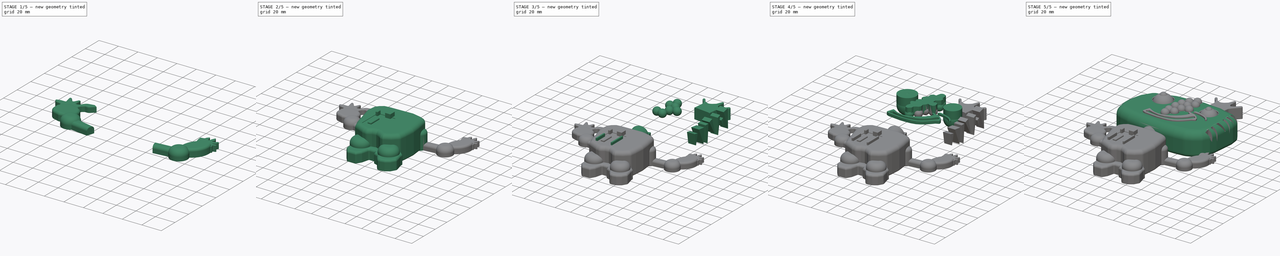
[diagram: build sequence overview — one tinted view per stage of 5, left to right]
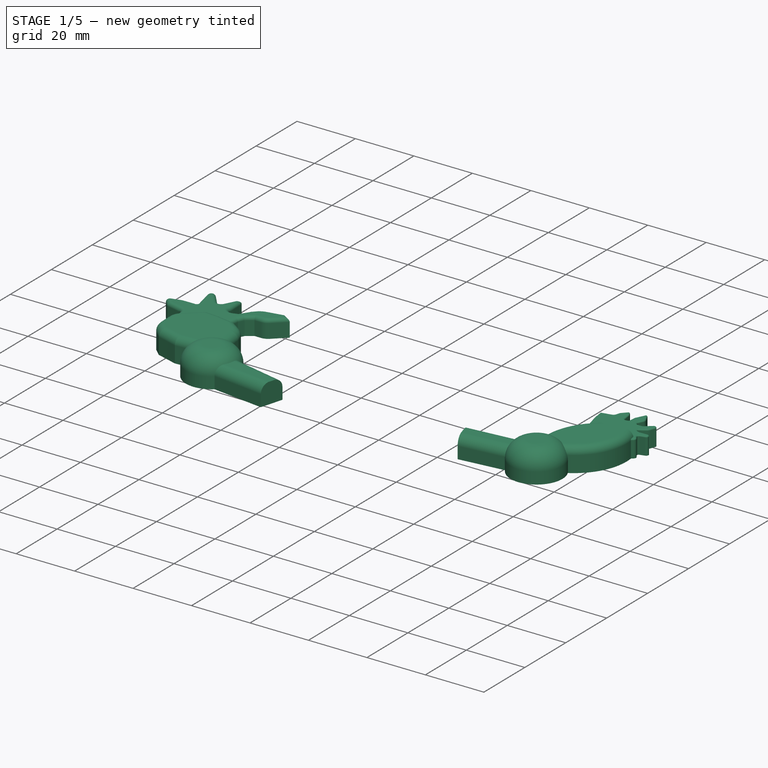
[diagram: stage 1 of 5 — iso view after this stage's code; geometry added in this stage tinted green]
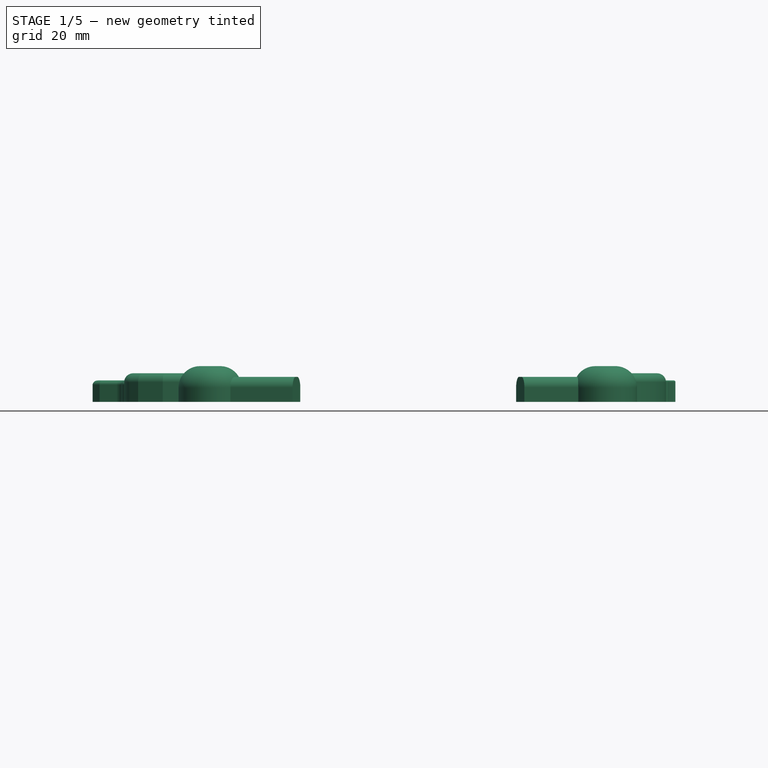
[diagram: stage 1 of 5 — front view after this stage's code; geometry added in this stage tinted green]
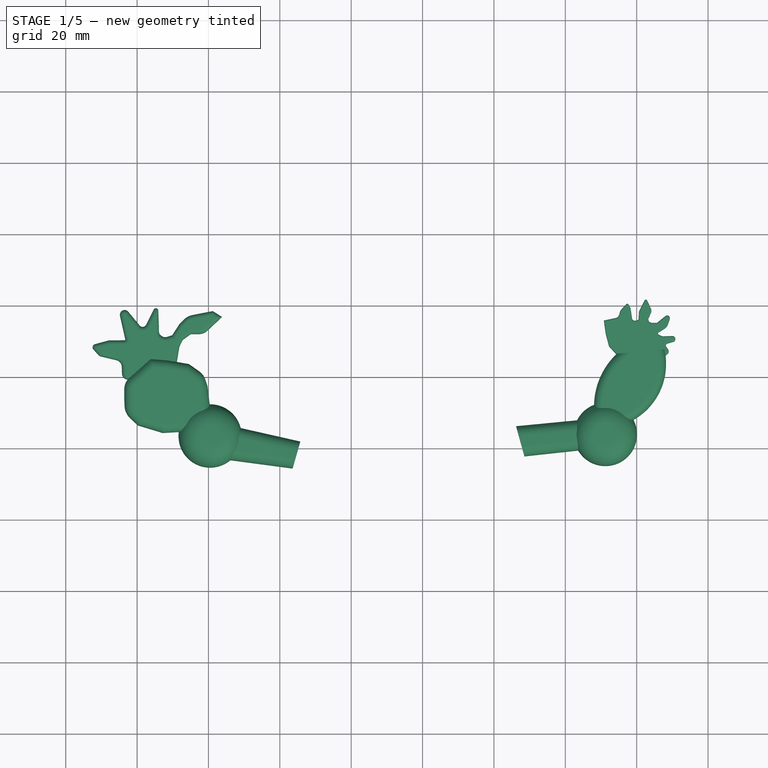
[diagram: stage 1 of 5 — top view after this stage's code; geometry added in this stage tinted green]
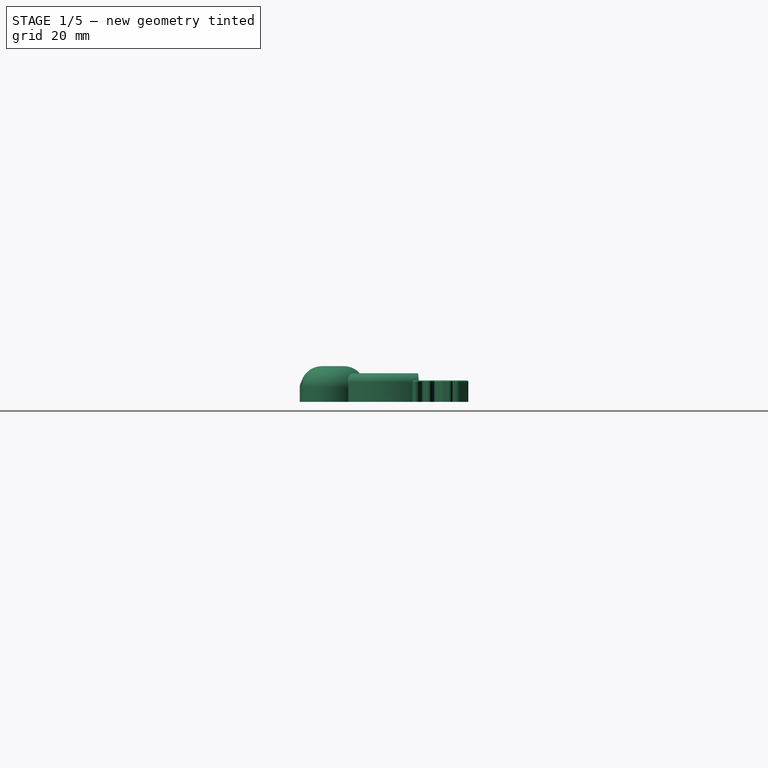
[diagram: stage 1 of 5 — right view after this stage's code; geometry added in this stage tinted green]
FCSTD DOCUMENT  (FreeCAD 0.16R6712 (Git))
Label: Robocilio
License: All rights reserved
LicenseURL: http://en.wikipedia.org/wiki/All_rights_reserved
objects: Sketcher::SketchObject×20, PartDesign::Pad×20, Part::Fillet×20, Part::Sphere×15, Part::MultiFuse×12, Part::FeaturePython×8, Part::Cut×4, App::DocumentObjectGroup×3, Image::ImagePlane×1, Part::Cylinder×1, Part::Box×1
note: 121 computed .brp shape members not serialized (recipe doc carries the construction recipe); baked Part::Feature solids carry a one-line shape summary decoded from their .brp

FEATURE [Sketcher::SketchObject] Sketch015
  sketch-geometry (2):
    g0: Circle CenterX=-59.536 CenterY=-16.493 CenterZ=0 NormalX=0 NormalY=0 NormalZ=1 Radius=8.85532
    g1: Circle CenterX=51.2286 CenterY=-16.0535 CenterZ=0 NormalX=0 NormalY=0 NormalZ=1 Radius=8.85532
  constraints (1):
    c: Equal(g1,g0)
FEATURE [PartDesign::Pad] Pad015
  Length = 10
  Length2 = 100
  Sketch = -> Sketch015
  Type = 0
FEATURE [Part::Fillet] Fillet014  label="Codos"
  Base = -> Pad015
  Edges = 2 edges r=6: [Edge3,Edge6]
FEATURE [Sketcher::SketchObject] Sketch016
  sketch-geometry (8):
    g0: LineSegment StartX=-54.849 StartY=-13.4215 StartZ=0 EndX=-34.2694 EndY=-18.0742 EndZ=0
    g1: LineSegment StartX=-56.6385 StartY=-22.9059 StartZ=0 EndX=-36.4169 EndY=-25.5902 EndZ=0
    g2: LineSegment StartX=26.2166 StartY=-13.7794 StartZ=0 EndX=48.4067 EndY=-11.6319 EndZ=0
    g3: LineSegment StartX=28.5429 StartY=-22.1901 StartZ=0 EndX=48.4067 EndY=-20.0427 EndZ=0
    g4: LineSegment StartX=-54.849 StartY=-13.4215 StartZ=0 EndX=-56.6385 EndY=-22.9059 EndZ=0
    g5: LineSegment StartX=-36.4169 StartY=-25.5902 StartZ=0 EndX=-34.2694 EndY=-18.0742 EndZ=0
    g6: LineSegment StartX=28.5429 StartY=-22.1901 StartZ=0 EndX=26.2166 EndY=-13.7794 EndZ=0
    g7: LineSegment StartX=48.4067 StartY=-20.0427 StartZ=0 EndX=48.4067 EndY=-11.6319 EndZ=0
  constraints (9):
    c: Coincident(g4,g0)
    c: Coincident(g4,g1)
    c: Coincident(g5,g1)
    c: Coincident(g5,g0)
    c: Coincident(g6,g3)
    c: Coincident(g6,g2)
    c: Coincident(g7,g3)
    c: Coincident(g7,g2)
    c: Vertical(g7)
FEATURE [PartDesign::Pad] Pad016
  Length = 7
  Length2 = 100
  Sketch = -> Sketch016
  Type = 0
FEATURE [Part::Fillet] Fillet015  label="Antebrazos"
  Base = -> Pad016
  Edges = 4 edges r=3: [Edge7,Edge12,Edge19,Edge24]
FEATURE [Sketcher::SketchObject] Sketch017
  sketch-geometry (20):
    g0: ArcOfCircle CenterX=68.3446 CenterY=-8.25946 CenterZ=0 NormalX=0 NormalY=0 NormalZ=1 Radius=20.291 StartAngle=2.32624 EndAngle=3.26261
    g1: ArcOfCircle CenterX=50.2635 CenterY=3.67212 CenterZ=0 NormalX=0 NormalY=0 NormalZ=1 Radius=17.9646 StartAngle=5.07357 EndAngle=6.51202
    g2: LineSegment StartX=48.202 StartY=-10.7091 StartZ=0 EndX=56.6117 EndY=-13.1334 EndZ=0
    g3: LineSegment StartX=54.4328 StartY=6.51165 StartZ=0 EndX=67.7598 EndY=7.74727 EndZ=0
    g4: LineSegment StartX=-66.4317 StartY=-16.0871 StartZ=0 EndX=-58.4432 EndY=-10.636 EndZ=0
    g5: LineSegment StartX=-59.3364 StartY=-10.2245 StartZ=0 EndX=-65.0959 EndY=-15.1756 EndZ=0
    g6: LineSegment StartX=-65.0959 StartY=-15.1756 StartZ=0 EndX=-72.802 EndY=-15.6297 EndZ=0
    g7: LineSegment StartX=-72.802 StartY=-15.6297 StartZ=0 EndX=-79.7245 EndY=-13.5435 EndZ=0
    g8: LineSegment StartX=-79.7245 StartY=-13.5435 StartZ=0 EndX=-81.8974 EndY=-11.5377 EndZ=0
    g9: LineSegment StartX=-83.511 StartY=-8.05563 StartZ=0 EndX=-83.6124 EndY=-5.67271 EndZ=0
    g10: LineSegment StartX=-83.6124 StartY=-5.67271 StartZ=0 EndX=-83.6124 EndY=-3.53116 EndZ=0
    g11: LineSegment StartX=-82.0913 StartY=-0.154629 StartZ=0 EndX=-76.2158 EndY=5.04291 EndZ=0
    g12: LineSegment StartX=-76.2158 StartY=5.04291 StartZ=0 EndX=-71.4744 EndY=4.66359 EndZ=0
    g13: LineSegment StartX=-71.4744 StartY=4.66359 StartZ=0 EndX=-65.5002 EndY=3.62048 EndZ=0
    g14: LineSegment StartX=-65.5002 StartY=3.62048 StartZ=0 EndX=-62.6168 EndY=1.58899 EndZ=0
    g15: LineSegment StartX=-60.8424 StartY=-0.819479 StartZ=0 EndX=-60.2846 EndY=-2.54337 EndZ=0
    g16: LineSegment StartX=-60.2846 StartY=-2.54337 StartZ=0 EndX=-59.3364 EndY=-10.2245 EndZ=0
    g17: ArcOfCircle CenterX=-79.1044 CenterY=-3.53116 CenterZ=0 NormalX=0 NormalY=0 NormalZ=1 Radius=4.50807 StartAngle=2.29505 EndAngle=3.14159
    g18: ArcOfCircle CenterX=-78.4858 CenterY=-7.84179 CenterZ=0 NormalX=0 NormalY=0 NormalZ=1 Radius=5.02976 StartAngle=3.18412 EndAngle=3.96697
    g19: ArcOfCircle CenterX=-65.3385 CenterY=-2.27411 CenterZ=0 NormalX=0 NormalY=0 NormalZ=1 Radius=4.72561 StartAngle=0.3129 EndAngle=0.957026
  constraints (21):
    c: Coincident(g2,g0)
    c: Coincident(g2,g1)
    c: Coincident(g3,g0)
    c: Coincident(g3,g1)
    c: PointOnObject(g5,g4)
    c: Coincident(g5,g6)
    c: Coincident(g6,g7)
    c: Coincident(g7,g8)
    c: Coincident(g9,g10)
    c: Vertical(g10)
    c: Coincident(g11,g12)
    c: Coincident(g12,g13)
    c: Coincident(g13,g14)
    c: Coincident(g15,g16)
    c: Coincident(g16,g5)
    c: Tangent(g10,g17) = 1.5708
    c: Tangent(g11,g17) = 1.5708
    c: Tangent(g9,g18) = 1.5708
    c: Tangent(g8,g18) = 1.5708
    c: Tangent(g14,g19) = 1.5708
    c: Tangent(g15,g19) = 1.5708
FEATURE [PartDesign::Pad] Pad017
  Length = 8
  Length2 = 100
  Sketch = -> Sketch017
  Type = 0
FEATURE [Part::Fillet] Fillet016
  Base = -> Pad017
  Edges = 14 edges r=2.5: [Edge16,Edge19,Edge25,Edge28,Edge31,Edge34,Edge37,Edge40,Edge43,Edge46,Edge49,Edge52,Edge55,Edge57]
FEATURE [Part::Fillet] Fillet017  label="Brazos"
  Base = -> Fillet016
  Edges = 2 edges r=2.5: [Edge78,Edge84]
FEATURE [Sketcher::SketchObject] Sketch018
  sketch-geometry (32):
    g0: LineSegment StartX=-78.2059 StartY=-1.08939 StartZ=0 EndX=-82.6101 EndY=-0.692968 EndZ=0
    g1: LineSegment StartX=-84.239 StartY=1.03637 StartZ=0 EndX=-84.2962 EndY=2.94403 EndZ=0
    g2: LineSegment StartX=-85.7784 StartY=4.76607 StartZ=0 EndX=-90.4851 EndY=5.89272 EndZ=0
    g3: LineSegment StartX=-87.8794 StartY=10.265 StartZ=0 EndX=-83.6255 EndY=10.2894 EndZ=0
    g4: LineSegment StartX=-83.3216 StartY=10.6719 StartZ=0 EndX=-84.7907 EndY=17.1707 EndZ=0
    g5: LineSegment StartX=-82.489 StartY=18.303 StartZ=0 EndX=-79.287 EndY=14.4391 EndZ=0
    g6: LineSegment StartX=-77.4896 StartY=14.6414 StartZ=0 EndX=-75.3248 EndY=18.9267 EndZ=0
    g7: LineSegment StartX=-74.0624 StartY=18.6508 StartZ=0 EndX=-73.9041 EndY=14.4343 EndZ=0
    g8: LineSegment StartX=-73.9041 StartY=14.4343 StartZ=0 EndX=-73.8992 EndY=12.9388 EndZ=0
    g9: LineSegment StartX=-71.6054 StartY=11.2522 StartZ=0 EndX=-70.1629 EndY=11.6974 EndZ=0
    g10: LineSegment StartX=-70.1629 StartY=11.6974 StartZ=0 EndX=-68.1277 EndY=14.8504 EndZ=0
    g11: LineSegment StartX=-68.1277 StartY=14.8504 StartZ=0 EndX=-67.0385 EndY=15.954 EndZ=0
    g12: LineSegment StartX=-64.3613 StartY=17.3897 StartZ=0 EndX=-58.8019 EndY=18.4729 EndZ=0
    g13: LineSegment StartX=-58.8019 StartY=18.4729 StartZ=0 EndX=-56.2236 EndY=16.8406 EndZ=0
    g14: LineSegment StartX=-56.2236 StartY=16.8406 StartZ=0 EndX=-60.3167 EndY=13.0126 EndZ=0
    g15: LineSegment StartX=-62.6858 StartY=12.0774 StartZ=0 EndX=-64.9346 EndY=12.0774 EndZ=0
    g16: LineSegment StartX=-64.9346 StartY=12.0774 StartZ=0 EndX=-67.2074 EndY=10.4386 EndZ=0
    g17: LineSegment StartX=-67.2074 StartY=10.4386 StartZ=0 EndX=-68.1378 EndY=8.52295 EndZ=0
    g18: LineSegment StartX=-68.1378 StartY=8.52295 StartZ=0 EndX=-69.0683 EndY=3.04964 EndZ=0
    g19: LineSegment StartX=-69.0683 StartY=3.04964 StartZ=0 EndX=-78.2059 EndY=-1.08939 EndZ=0
    g20: ArcOfCircle CenterX=-63.3776 CenterY=12.3412 CenterZ=0 NormalX=0 NormalY=0 NormalZ=1 Radius=5.14343 StartAngle=1.76323 EndAngle=2.36281
    g21: ArcOfCircle CenterX=-62.6858 CenterY=15.5458 CenterZ=0 NormalX=0 NormalY=0 NormalZ=1 Radius=3.46836 StartAngle=4.71239 EndAngle=5.46433
    g22: ArcOfCircle CenterX=-72.1278 CenterY=12.9448 CenterZ=0 NormalX=0 NormalY=0 NormalZ=1 Radius=1.77138 StartAngle=3.14493 EndAngle=5.01174
    g23: ArcOfCircle CenterX=-74.7292 CenterY=18.6258 CenterZ=0 NormalX=0 NormalY=0 NormalZ=1 Radius=0.667256 StartAngle=0.0375179 EndAngle=2.6738
    g24: ArcOfCircle CenterX=-78.4546 CenterY=15.1289 CenterZ=0 NormalX=0 NormalY=0 NormalZ=1 Radius=1.08107 StartAngle=3.8336 EndAngle=5.81539
    g25: ArcOfCircle CenterX=-83.5044 CenterY=17.4615 CenterZ=0 NormalX=0 NormalY=0 NormalZ=1 Radius=1.31877 StartAngle=0.692005 EndAngle=3.36392
    g26: ArcOfCircle CenterX=-83.6273 CenterY=10.6028 CenterZ=0 NormalX=0 NormalY=0 NormalZ=1 Radius=0.313452 StartAngle=4.71811 EndAngle=6.50552
    g27: ArcOfCircle CenterX=-82.4497 CenterY=1.08998 CenterZ=0 NormalX=0 NormalY=0 NormalZ=1 Radius=1.79016 StartAngle=3.17155 EndAngle=4.62262
    g28: LineSegment StartX=-87.8794 StartY=10.265 StartZ=0 EndX=-91.8146 EndY=9.20691 EndZ=0
    g29: LineSegment StartX=-92.2283 StartY=7.76042 StartZ=0 EndX=-90.4851 EndY=5.89272 EndZ=0
    g30: ArcOfCircle CenterX=-91.5867 CenterY=8.35931 CenterZ=0 NormalX=0 NormalY=0 NormalZ=1 Radius=0.87771 StartAngle=1.83346 EndAngle=3.89254
    g31: ArcOfCircle CenterX=-86.2283 CenterY=2.88613 CenterZ=0 NormalX=0 NormalY=0 NormalZ=1 Radius=1.93305 StartAngle=0.0299551 EndAngle=1.33585
  constraints (33):
    c: Coincident(g9,g10)
    c: Coincident(g10,g11)
    c: Coincident(g12,g13)
    c: Coincident(g13,g14)
    c: Horizontal(g15)
    c: Coincident(g15,g16)
    c: Coincident(g16,g17)
    c: Coincident(g17,g18)
    c: Coincident(g18,g19)
    c: Coincident(g19,g0)
    c: Tangent(g11,g20) = 1.5708
    c: Tangent(g12,g20) = 1.5708
    c: Tangent(g15,g21) = 1.5708
    c: Tangent(g14,g21) = 1.5708
    c: Tangent(g9,g22) = -1.5708
    c: Tangent(g8,g22) = -1.5708
    c: Tangent(g6,g23) = 1.5708
    c: Tangent(g7,g23) = 1.5708
    c: Tangent(g5,g24) = -1.5708
    c: Tangent(g6,g24) = -1.5708
    c: Tangent(g4,g25) = 1.5708
    c: Tangent(g5,g25) = 1.5708
    c: Tangent(g4,g26) = -1.5708
    c: Tangent(g3,g26) = -1.5708
    c: Tangent(g1,g27) = 1.5708
    c: Tangent(g0,g27) = 1.5708
    c: Coincident(g28,g3)
    c: Coincident(g29,g2)
    c: Tangent(g28,g30) = -1.5708
    c: Tangent(g29,g30) = -1.5708
    c: Coincident(g7,g8)
    c: Tangent(g2,g31) = -1.5708
    c: Tangent(g1,g31) = -1.5708
FEATURE [PartDesign::Pad] Pad018
  Length = 6
  Length2 = 100
  Sketch = -> Sketch018
  Type = 0
FEATURE [Part::Fillet] Fillet018  label="ManoD"
  Base = -> Pad018
  Edges = 32 edges r=1.2: [Edge4,Edge7,Edge10,Edge13,Edge16,Edge19,Edge22,Edge25,Edge28,Edge31,Edge34,Edge37,Edge40,Edge43,Edge46,Edge49,Edge52,Edge55,Edge58,Edge61,Edge64,Edge67,Edge70,Edge73,Edge76,Edge79,Edge82,Edge85,Edge88,Edge91,Edge94,Edge96]
FEATURE [Sketcher::SketchObject] Sketch020
  sketch-geometry (37):
    g0: LineSegment StartX=55.3907 StartY=5.31208 StartZ=0 EndX=52.2659 EndY=8.58384 EndZ=0
    g1: LineSegment StartX=52.2659 StartY=8.58384 StartZ=0 EndX=51.2943 EndY=12.2651 EndZ=0
    g2: LineSegment StartX=51.2943 StartY=12.2651 StartZ=0 EndX=50.8085 EndY=15.826 EndZ=0
    g3: LineSegment StartX=50.8085 StartY=15.826 StartZ=0 EndX=54.1578 EndY=16.5316 EndZ=0
    g4: LineSegment StartX=55.0542 StartY=17.3552 StartZ=0 EndX=55.4449 EndY=18.6534 EndZ=0
    g5: LineSegment StartX=55.4449 StartY=18.6534 StartZ=0 EndX=57.0714 EndY=20.3763 EndZ=0
    g6: LineSegment StartX=57.773 StartY=20.2668 StartZ=0 EndX=58.307 EndY=19.1526 EndZ=0
    g7: LineSegment StartX=58.307 StartY=19.1526 StartZ=0 EndX=58.7163 EndY=16.386 EndZ=0
    g8: LineSegment StartX=59.5935 StartY=15.7677 StartZ=0 EndX=60.2427 EndY=15.8966 EndZ=0
    g9: LineSegment StartX=60.5126 StartY=16.2059 StartZ=0 EndX=60.6378 EndY=18.288 EndZ=0
    g10: LineSegment StartX=60.6378 StartY=18.288 StartZ=0 EndX=62.1714 EndY=21.4208 EndZ=0
    g11: LineSegment StartX=62.9512 StartY=21.4118 StartZ=0 EndX=63.9915 EndY=19.1571 EndZ=0
    g12: LineSegment StartX=63.9975 StartY=17.991 StartZ=0 EndX=63.344 EndY=16.5353 EndZ=0
    g13: LineSegment StartX=64.2247 StartY=15.1746 StartZ=0 EndX=65.6891 EndY=15.1746 EndZ=0
    g14: LineSegment StartX=65.6891 StartY=15.1746 StartZ=0 EndX=68.0426 EndY=17.0672 EndZ=0
    g15: LineSegment StartX=69.2637 StartY=16.2053 StartZ=0 EndX=68.7375 EndY=14.697 EndZ=0
    g16: LineSegment StartX=67.985 StartY=13.7165 StartZ=0 EndX=66.8002 EndY=12.9105 EndZ=0
    g17: LineSegment StartX=66.8002 StartY=12.9105 StartZ=0 EndX=66.274 EndY=12.6422 EndZ=0
    g18: LineSegment StartX=66.3157 StartY=11.7588 StartZ=0 EndX=67.2813 EndY=11.3764 EndZ=0
    g19: LineSegment StartX=67.2813 StartY=11.3764 StartZ=0 EndX=69.999 EndY=11.4774 EndZ=0
    g20: LineSegment StartX=70.2386 StartY=9.86983 StartZ=0 EndX=68.6073 EndY=9.43802 EndZ=0
    g21: LineSegment StartX=68.2671 StartY=8.54521 StartZ=0 EndX=68.8149 EndY=7.71608 EndZ=0
    g22: LineSegment StartX=68.6171 StartY=6.44389 StartZ=0 EndX=66.0089 EndY=4.34188 EndZ=0
    g23: LineSegment StartX=66.0089 StartY=4.34188 StartZ=0 EndX=55.3907 EndY=5.31208 EndZ=0
    g24: ArcOfCircle CenterX=53.9118 CenterY=17.699 CenterZ=0 NormalX=0 NormalY=0 NormalZ=1 Radius=1.19303 StartAngle=4.92004 EndAngle=5.99085
    g25: ArcOfCircle CenterX=57.3846 CenterY=20.0807 CenterZ=0 NormalX=0 NormalY=0 NormalZ=1 Radius=0.430678 StartAngle=0.44688 EndAngle=2.38496
    g26: ArcOfCircle CenterX=59.4493 CenterY=16.4945 CenterZ=0 NormalX=0 NormalY=0 NormalZ=1 Radius=0.740925 StartAngle=3.28851 EndAngle=4.90832
    g27: ArcOfCircle CenterX=60.1773 CenterY=16.226 CenterZ=0 NormalX=0 NormalY=0 NormalZ=1 Radius=0.335917 StartAngle=4.90832 EndAngle=6.22311
    g28: ArcOfCircle CenterX=62.5592 CenterY=21.231 CenterZ=0 NormalX=0 NormalY=0 NormalZ=1 Radius=0.431717 StartAngle=0.432275 EndAngle=2.68635
    g29: ArcOfCircle CenterX=62.7133 CenterY=18.5674 CenterZ=0 NormalX=0 NormalY=0 NormalZ=1 Radius=1.40762 StartAngle=5.86124 EndAngle=6.71546
    g30: ArcOfCircle CenterX=64.2247 CenterY=16.1399 CenterZ=0 NormalX=0 NormalY=0 NormalZ=1 Radius=0.965372 StartAngle=2.71965 EndAngle=4.71239
    g31: ArcOfCircle CenterX=68.5298 CenterY=16.4614 CenterZ=0 NormalX=0 NormalY=0 NormalZ=1 Radius=0.777385 StartAngle=5.94748 EndAngle=8.53127
    g32: ArcOfCircle CenterX=66.8763 CenterY=15.3463 CenterZ=0 NormalX=0 NormalY=0 NormalZ=1 Radius=1.9712 StartAngle=5.30974 EndAngle=5.94748
    g33: ArcOfCircle CenterX=66.4944 CenterY=12.2099 CenterZ=0 NormalX=0 NormalY=0 NormalZ=1 Radius=0.485242 StartAngle=2.04232 EndAngle=4.33533
    g34: ArcOfCircle CenterX=70.0293 CenterY=10.6603 CenterZ=0 NormalX=0 NormalY=0 NormalZ=1 Radius=0.817657 StartAngle=4.97116 EndAngle=7.8911
    g35: ArcOfCircle CenterX=68.7578 CenterY=8.86944 CenterZ=0 NormalX=0 NormalY=0 NormalZ=1 Radius=0.588155 StartAngle=1.82957 EndAngle=3.72548
    g36: ArcOfCircle CenterX=68.0168 CenterY=7.18873 CenterZ=0 NormalX=0 NormalY=0 NormalZ=1 Radius=0.95662 StartAngle=5.39074 EndAngle=6.86707
  constraints (38):
    c: Coincident(g0,g1)
    c: Coincident(g1,g2)
    c: Coincident(g2,g3)
    c: Coincident(g4,g5)
    c: Coincident(g6,g7)
    c: Coincident(g9,g10)
    c: Horizontal(g13)
    c: Coincident(g13,g14)
    c: Coincident(g16,g17)
    c: Coincident(g18,g19)
    c: Coincident(g22,g23)
    c: Coincident(g23,g0)
    c: Tangent(g3,g24) = -1.5708
    c: Tangent(g4,g24) = -1.5708
    c: Tangent(g5,g25) = 1.5708
    c: Tangent(g6,g25) = 1.5708
    c: Tangent(g7,g26) = -1.5708
    c: Tangent(g8,g26) = -1.5708
    c: Tangent(g8,g27) = -1.5708
    c: Tangent(g9,g27) = -1.5708
    c: Tangent(g10,g28) = 1.5708
    c: Tangent(g11,g28) = 1.5708
    c: Tangent(g12,g29) = 1.5708
    c: Tangent(g11,g29) = 1.5708
    c: Tangent(g12,g30) = -1.5708
    c: Tangent(g13,g30) = -1.5708
    c: Tangent(g14,g31) = 1.5708
    c: Tangent(g15,g31) = 1.5708
    c: Tangent(g16,g32) = 1.5708
    c: Tangent(g15,g32) = 1.5708
    c: Tangent(g17,g33) = -1.5708
    c: Tangent(g18,g33) = -1.5708
    c: Tangent(g19,g34) = 1.5708
    c: Tangent(g20,g34) = 1.5708
    c: Tangent(g20,g35) = -1.5708
    c: Tangent(g21,g35) = -1.5708
    c: Tangent(g22,g36) = 1.5708
    c: Tangent(g21,g36) = 1.5708
FEATURE [PartDesign::Pad] Pad019
  Length = 6
  Length2 = 100
  Sketch = -> Sketch020
  Type = 0
FEATURE [Part::Fillet] Fillet019  label="ManoI"
  Base = -> Pad019
  Edges = 37 edges r=0.4: [Edge4,Edge7,Edge10,Edge13,Edge16,Edge19,Edge22,Edge25,Edge28,Edge31,Edge34,Edge37,Edge40,Edge43,Edge46,Edge49,Edge52,Edge55,Edge58,Edge61,Edge64,Edge67,Edge70,Edge73,Edge76,Edge79,Edge82,Edge85,Edge88,Edge91,Edge94,Edge97,Edge100,Edge103,Edge106,Edge109,Edge111]
FEATURE [Part::MultiFuse] Fusion010  label="Manos"
  Shapes = -> [Fillet018,Fillet019]
FEATURE [Part::FeaturePython] Clone004  label="Clone of Codos"  # Draft clone (typed FeaturePython)
  Objects = -> [Fillet014]
  Scale = (1,1,1)
FEATURE [Part::FeaturePython] Clone005  label="Clone of Antebrazos"  # Draft clone (typed FeaturePython)
  Objects = -> [Fillet015]
  Scale = (1,1,1)
FEATURE [Part::FeaturePython] Clone006  label="Clone of Brazos"  # Draft clone (typed FeaturePython)
  Objects = -> [Fillet017]
  Scale = (1,1,1)
FEATURE [Part::FeaturePython] Clone007  label="Clone of Manos"  # Draft clone (typed FeaturePython)
  Objects = -> [Fusion010]
  Scale = (1,1,1)
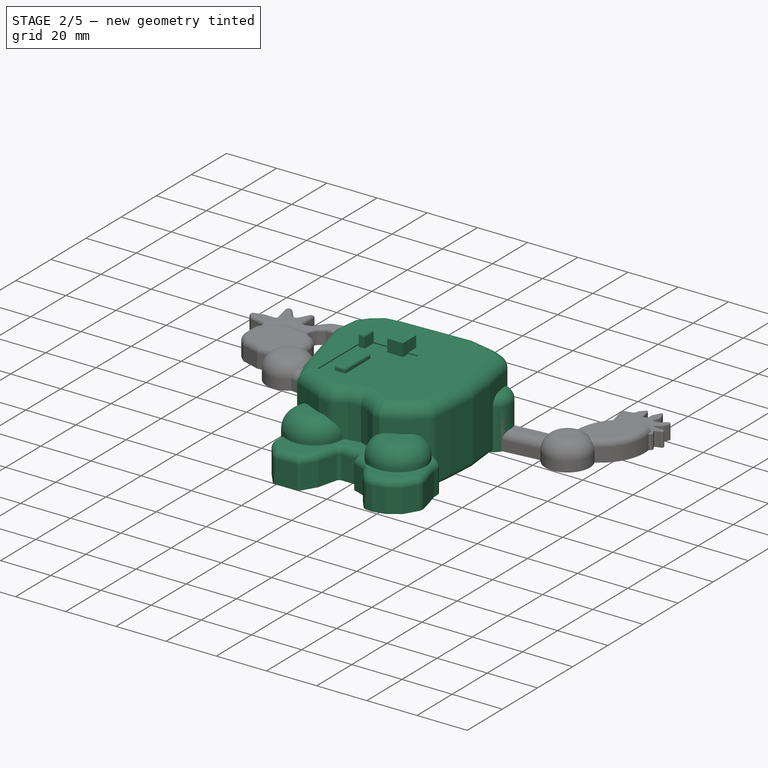
[diagram: stage 2 of 5 — iso view after this stage's code; geometry added in this stage tinted green]
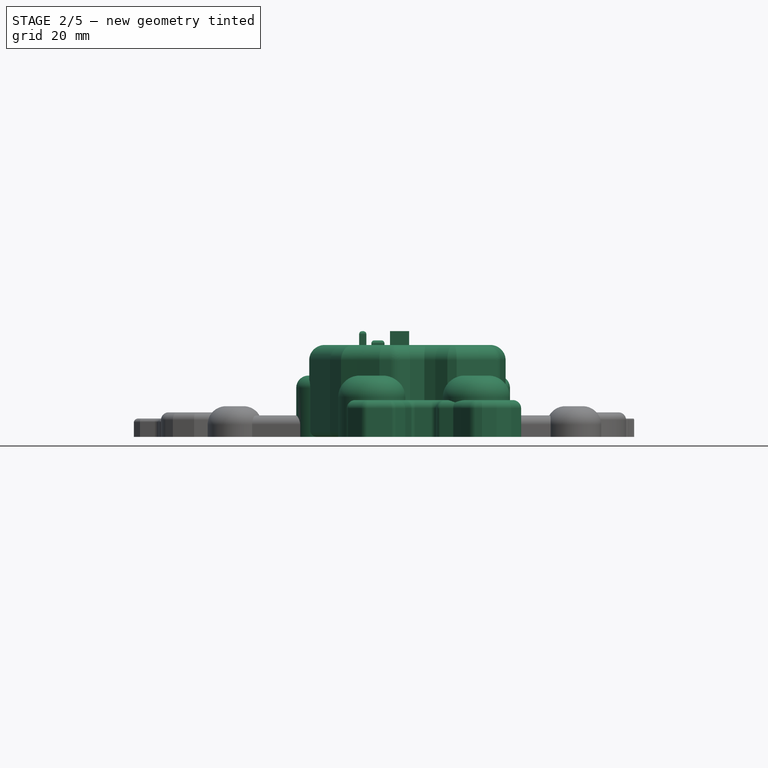
[diagram: stage 2 of 5 — front view after this stage's code; geometry added in this stage tinted green]
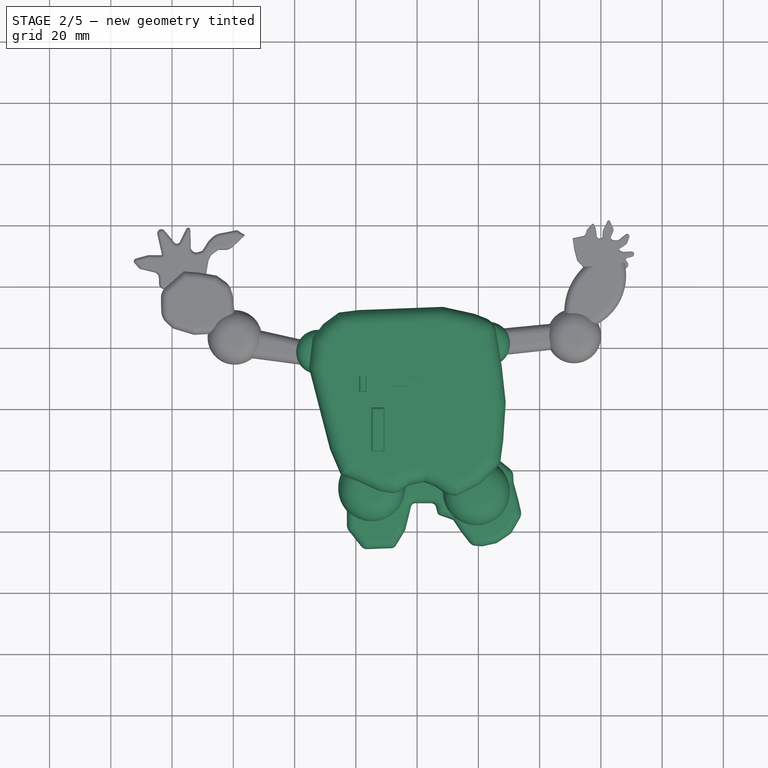
[diagram: stage 2 of 5 — top view after this stage's code; geometry added in this stage tinted green]
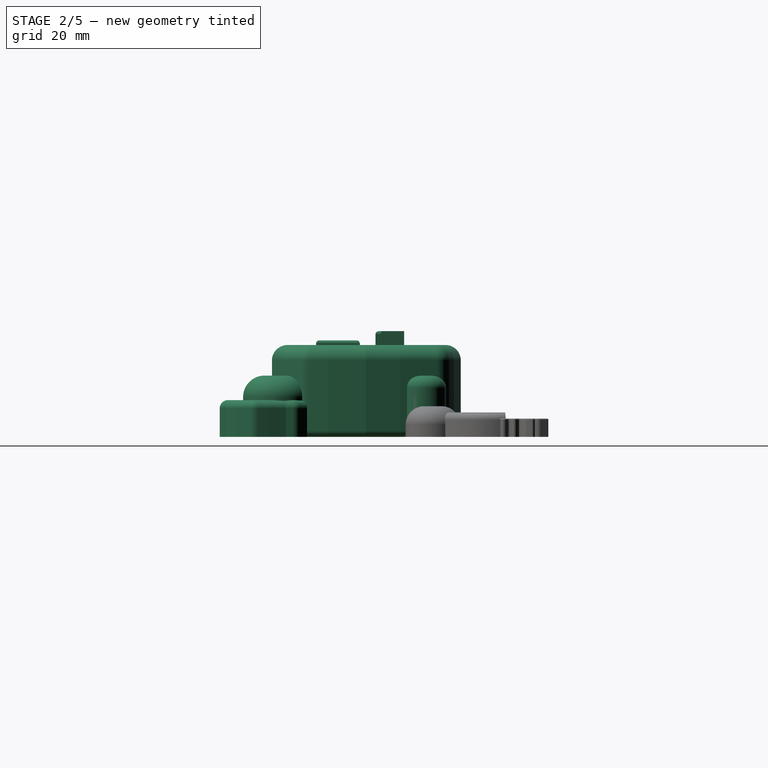
[diagram: stage 2 of 5 — right view after this stage's code; geometry added in this stage tinted green]
FEATURE [Sketcher::SketchObject] Sketch008
  sketch-geometry (26):
    g0: LineSegment StartX=-28.4269 StartY=-52.9882 StartZ=0 EndX=-35.2271 EndY=-26.6821 EndZ=0
    g1: LineSegment StartX=-35.2271 StartY=-26.6821 StartZ=0 EndX=-34.1011 EndY=-17.0644 EndZ=0
    g2: LineSegment StartX=-34.1011 StartY=-17.0644 StartZ=0 EndX=-30.6305 EndY=-12.526 EndZ=0
    g3: LineSegment StartX=-30.6305 StartY=-12.526 StartZ=0 EndX=-25.5582 EndY=-8.78845 EndZ=0
    g4: LineSegment StartX=-25.5582 StartY=-8.78845 StartZ=0 EndX=-19.151 EndY=-7.98755 EndZ=0
    g5: LineSegment StartX=-19.151 StartY=-7.98755 StartZ=0 EndX=8.3465 EndY=-6.91969 EndZ=0
    g6: LineSegment StartX=8.3465 StartY=-6.91969 StartZ=0 EndX=18.5981 EndY=-9.17246 EndZ=0
    g7: LineSegment StartX=18.5981 StartY=-9.17246 StartZ=0 EndX=22.3489 EndY=-10.6327 EndZ=0
    g8: LineSegment StartX=25.6759 StartY=-14.7241 StartZ=0 EndX=27.6619 EndY=-26.5842 EndZ=0
    g9: LineSegment StartX=27.6619 StartY=-26.5842 StartZ=0 EndX=28.9029 EndY=-37.8877 EndZ=0
    g10: LineSegment StartX=28.9029 StartY=-37.8877 StartZ=0 EndX=28.102 EndY=-50.1682 EndZ=0
    g11: LineSegment StartX=28.102 StartY=-50.1682 StartZ=0 EndX=27.2502 EndY=-56.5563 EndZ=0
    g12: LineSegment StartX=25.8792 StartY=-59.3348 StartZ=0 EndX=20.6061 EndY=-64.6201 EndZ=0
    g13: LineSegment StartX=20.6061 StartY=-64.6201 StartZ=0 EndX=12.9111 EndY=-68.5571 EndZ=0
    g14: LineSegment StartX=12.9111 StartY=-68.5571 StartZ=0 EndX=9.86895 EndY=-68.0202 EndZ=0
    g15: LineSegment StartX=9.86895 StartY=-68.0202 StartZ=0 EndX=5.932 EndY=-65.3359 EndZ=0
    g16: LineSegment StartX=5.932 StartY=-65.3359 StartZ=0 EndX=2.35295 EndY=-63.9043 EndZ=0
    g17: LineSegment StartX=2.35295 StartY=-63.9043 StartZ=0 EndX=-2.29983 EndY=-64.799 EndZ=0
    g18: LineSegment StartX=-2.29983 StartY=-64.799 StartZ=0 EndX=-5.47519 EndY=-66.8752 EndZ=0
    g19: LineSegment StartX=-8.69377 StartY=-67.551 StartZ=0 EndX=-12.3212 EndY=-66.9465 EndZ=0
    g20: LineSegment StartX=-12.3212 StartY=-66.9465 StartZ=0 EndX=-19.4793 EndY=-63.7253 EndZ=0
    g21: LineSegment StartX=-19.4793 StartY=-63.7253 StartZ=0 EndX=-24.8479 EndY=-61.3989 EndZ=0
    g22: LineSegment StartX=-24.8479 StartY=-61.3989 StartZ=0 EndX=-28.4269 EndY=-52.9882 EndZ=0
    g23: ArcOfCircle CenterX=-7.95024 CenterY=-63.0899 CenterZ=0 NormalX=0 NormalY=0 NormalZ=1 Radius=4.52271 StartAngle=4.54724 EndAngle=5.29146
    g24: ArcOfCircle CenterX=22.4532 CenterY=-55.9167 CenterZ=0 NormalX=0 NormalY=0 NormalZ=1 Radius=4.83951 StartAngle=5.49895 EndAngle=6.15063
    g25: ArcOfCircle CenterX=20.413 CenterY=-15.6054 CenterZ=0 NormalX=0 NormalY=0 NormalZ=1 Radius=5.33624 StartAngle=0.165913 EndAngle=1.19953
  constraints (26):
    c: Coincident(g0,g1)
    c: Coincident(g1,g2)
    c: Coincident(g2,g3)
    c: Coincident(g3,g4)
    c: Coincident(g4,g5)
    c: Coincident(g5,g6)
    c: Coincident(g6,g7)
    c: Coincident(g8,g9)
    c: Coincident(g9,g10)
    c: Coincident(g10,g11)
    c: Coincident(g12,g13)
    c: Coincident(g13,g14)
    c: Coincident(g14,g15)
    c: Coincident(g15,g16)
    c: Coincident(g16,g17)
    c: Coincident(g17,g18)
    c: Coincident(g19,g20)
    c: Coincident(g20,g21)
    c: Coincident(g21,g22)
    c: Coincident(g22,g0)
    c: Tangent(g19,g23) = 1.5708
    c: Tangent(g18,g23) = 1.5708
    c: Tangent(g12,g24) = 1.5708
    c: Tangent(g11,g24) = 1.5708
    c: Tangent(g7,g25) = 1.5708
    c: Tangent(g8,g25) = 1.5708
FEATURE [PartDesign::Pad] Pad008  label="Cuerpo-bruto"
  Length = 30
  Length2 = 100
  Sketch = -> Sketch008
  Type = 0
FEATURE [Part::Fillet] Fillet007
  Base = -> Pad008
  Edges = 26 edges r=5: [Edge4,Edge7,Edge10,Edge13,Edge16,Edge19,Edge22,Edge25,Edge28,Edge31,Edge34,Edge37,Edge40,Edge43,Edge46,Edge49,Edge52,Edge55,Edge58,Edge61,Edge64,Edge67,Edge70,Edge73,Edge76,Edge78]
FEATURE [Part::Fillet] Fillet008  label="Torso"
  Base = -> Fillet007
  Edges = 26 edges r=2: [Edge3,Edge6,Edge11,Edge12,Edge13,Edge14,Edge15,Edge16,Edge17,Edge18,Edge19,Edge20,Edge21,Edge22,Edge23,Edge24,Edge25,Edge26,Edge27,Edge28,Edge29,Edge30,Edge31,Edge32,Edge33,Edge34]
FEATURE [Sketcher::SketchObject] Sketch009
  Placement = pos=(0,0,29.5) rot=(0,0,1;0rad)
  sketch-geometry (8):
    g0: LineSegment StartX=-19.8378 StartY=-29.6672 StartZ=0 EndX=-8.90951 EndY=-29.6672 EndZ=0
    g1: LineSegment StartX=-8.90951 StartY=-29.6672 StartZ=0 EndX=-8.90951 EndY=-25.3881 EndZ=0
    g2: LineSegment StartX=-8.90951 StartY=-25.3881 StartZ=0 EndX=-2.58955 EndY=-25.3881 EndZ=0
    g3: LineSegment StartX=-2.58955 StartY=-25.3881 StartZ=0 EndX=-2.58955 EndY=-29.9306 EndZ=0
    g4: LineSegment StartX=-2.58955 StartY=-29.9306 StartZ=0 EndX=1.4921 EndY=-29.9306 EndZ=0
    g5: LineSegment StartX=1.4921 StartY=-29.9306 StartZ=0 EndX=1.4921 EndY=-56.8563 EndZ=0
    g6: LineSegment StartX=1.4921 StartY=-56.8563 StartZ=0 EndX=-19.8378 EndY=-56.8563 EndZ=0
    g7: LineSegment StartX=-19.8378 StartY=-56.8563 StartZ=0 EndX=-19.8378 EndY=-29.6672 EndZ=0
  constraints (16):
    c: Horizontal(g0)
    c: Coincident(g0,g1)
    c: Coincident(g1,g2)
    c: Horizontal(g2)
    c: Coincident(g2,g3)
    c: Vertical(g3)
    c: Coincident(g3,g4)
    c: Horizontal(g4)
    c: Coincident(g4,g5)
    c: Vertical(g5)
    c: Coincident(g5,g6)
    c: Horizontal(g6)
    c: Coincident(g6,g7)
    c: Coincident(g7,g0)
    c: Vertical(g7)
    c: Vertical(g1)
FEATURE [PartDesign::Pad] Pad009  label="Logo-forma"
  Length = 1
  Length2 = 100
  Placement = pos=(0,0,29.5) rot=(0,0,1;0rad)
  Sketch = -> Sketch009
  Type = 0
FEATURE [Part::Cut] Cut003  label="Cuerpo-logo-forma"
  Base = -> Fillet008
  Tool = -> Pad009
FEATURE [Sketcher::SketchObject] Sketch010
  Placement = pos=(0,0,29.5) rot=(0,0,1;0rad)
  Support = -> Cut003 [Face89]
  sketch-geometry (8):
    g0: LineSegment StartX=-8.84855 StartY=-25.3982 StartZ=0 EndX=-2.62451 EndY=-25.3982 EndZ=0
    g1: LineSegment StartX=-2.62451 StartY=-25.3982 StartZ=0 EndX=-2.62451 EndY=-32.9145 EndZ=0
    g2: LineSegment StartX=-2.62451 StartY=-32.9145 StartZ=0 EndX=-8.84855 EndY=-32.9145 EndZ=0
    g3: LineSegment StartX=-8.84855 StartY=-32.9145 StartZ=0 EndX=-8.84855 EndY=-25.3982 EndZ=0
    g4: LineSegment StartX=-18.9387 StartY=-29.6757 StartZ=0 EndX=-16.5722 EndY=-29.6757 EndZ=0
    g5: LineSegment StartX=-16.5722 StartY=-29.6757 StartZ=0 EndX=-16.5722 EndY=-34.7355 EndZ=0
    g6: LineSegment StartX=-16.5722 StartY=-34.7355 StartZ=0 EndX=-18.9387 EndY=-34.7355 EndZ=0
    g7: LineSegment StartX=-18.9387 StartY=-34.7355 StartZ=0 EndX=-18.9387 EndY=-29.6757 EndZ=0
  constraints (16):
    c: Coincident(g0,g1)
    c: Coincident(g1,g2)
    c: Coincident(g2,g3)
    c: Coincident(g3,g0)
    c: Horizontal(g0)
    c: Horizontal(g2)
    c: Vertical(g1)
    c: Vertical(g3)
    c: Coincident(g4,g5)
    c: Coincident(g5,g6)
    c: Coincident(g6,g7)
    c: Coincident(g7,g4)
    c: Horizontal(g4)
    c: Horizontal(g6)
    c: Vertical(g5)
    c: Vertical(g7)
FEATURE [PartDesign::Pad] Pad010
  Length = 5
  Length2 = 100
  Sketch = -> Sketch010
  Type = 0
FEATURE [Part::Fillet] Fillet009  label="USB-VCC"
  Base = -> Pad010
  Edges = 3 edges r=1: [Edge224,Edge226,Edge228]
FEATURE [Sketcher::SketchObject] Sketch011
  Placement = pos=(0,0,29.5) rot=(0,0,1;0rad)
  Support = -> Fillet009 [Face4]
  sketch-geometry (4):
    g0: LineSegment StartX=-14.9405 StartY=-39.869 StartZ=0 EndX=-10.6521 EndY=-39.869 EndZ=0
    g1: LineSegment StartX=-10.6521 StartY=-39.869 StartZ=0 EndX=-10.6521 EndY=-54.1304 EndZ=0
    g2: LineSegment StartX=-10.6521 StartY=-54.1304 StartZ=0 EndX=-14.9405 EndY=-54.1304 EndZ=0
    g3: LineSegment StartX=-14.9405 StartY=-54.1304 StartZ=0 EndX=-14.9405 EndY=-39.869 EndZ=0
  constraints (8):
    c: Coincident(g0,g1)
    c: Coincident(g1,g2)
    c: Coincident(g2,g3)
    c: Coincident(g3,g0)
    c: Horizontal(g0)
    c: Horizontal(g2)
    c: Vertical(g1)
    c: Vertical(g3)
FEATURE [PartDesign::Pad] Pad011
  Length = 2
  Length2 = 100
  Sketch = -> Sketch011
  Type = 0
FEATURE [Part::Fillet] Fillet010  label="Micro"
  Base = -> Pad011
  Edges = 4 edges r=1: [Edge1,Edge2,Edge3,Edge4]
FEATURE [Sketcher::SketchObject] Sketch013
  sketch-geometry (4):
    g0: Circle CenterX=-32.4107 CenterY=-21.3404 CenterZ=0 NormalX=0 NormalY=0 NormalZ=1 Radius=7.04792
    g1: Circle CenterX=23.2693 CenterY=-18.7099 CenterZ=0 NormalX=0 NormalY=0 NormalZ=1 Radius=7.04792
    g2: Circle CenterX=-14.8165 CenterY=-65.7508 CenterZ=0 NormalX=0 NormalY=0 NormalZ=1 Radius=10.9363
    g3: Circle CenterX=19.336 CenterY=-67.0263 CenterZ=0 NormalX=0 NormalY=0 NormalZ=1 Radius=10.9363
  constraints (2):
    c: Equal(g0,g1)
    c: Equal(g2,g3)
FEATURE [PartDesign::Pad] Pad013
  Length = 20
  Length2 = 100
  Sketch = -> Sketch013
  Type = 0
FEATURE [Part::Fillet] Fillet011
  Base = -> Pad013
  Edges = 2 edges r=4: [Edge9,Edge12]
FEATURE [Part::Fillet] Fillet012  label="Articulaciones"
  Base = -> Fillet011
  Edges = 2 edges r=7: [Edge13,Edge16]
FEATURE [Sketcher::SketchObject] Sketch014
  sketch-geometry (30):
    g0: LineSegment StartX=-22.9386 StartY=-72.1476 StartZ=0 EndX=-22.9386 EndY=-77.6154 EndZ=0
    g1: LineSegment StartX=-22.2404 StartY=-79.6242 StartZ=0 EndX=-18.2105 EndY=-84.7209 EndZ=0
    g2: LineSegment StartX=-16.2793 StartY=-85.6086 StartZ=0 EndX=-8.3625 EndY=-85.292 EndZ=0
    g3: LineSegment StartX=-6.93271 StartY=-84.4462 StartZ=0 EndX=-3.88179 EndY=-79.3844 EndZ=0
    g4: LineSegment StartX=-3.88179 StartY=-79.3844 StartZ=0 EndX=-1.98212 EndY=-71.7154 EndZ=0
    g5: LineSegment StartX=-0.582107 StartY=-70.6199 StartZ=0 EndX=4.54189 EndY=-70.6199 EndZ=0
    g6: LineSegment StartX=6.17726 StartY=-71.8834 StartZ=0 EndX=6.64007 EndY=-73.6575 EndZ=0
    g7: LineSegment StartX=7.45655 StartY=-74.5472 StartZ=0 EndX=11.7979 EndY=-76.0877 EndZ=0
    g8: LineSegment StartX=11.7979 StartY=-76.0877 StartZ=0 EndX=14.371 EndY=-79.9473 EndZ=0
    g9: LineSegment StartX=14.371 StartY=-79.9473 StartZ=0 EndX=17.1114 EndY=-83.4524 EndZ=0
    g10: LineSegment StartX=18.9877 StartY=-84.4802 StartZ=0 EndX=21.2057 EndY=-84.6914 EndZ=0
    g11: LineSegment StartX=21.2057 StartY=-84.6914 StartZ=0 EndX=25.9498 EndY=-83.6461 EndZ=0
    g12: LineSegment StartX=25.9498 StartY=-83.6461 StartZ=0 EndX=30.6939 EndY=-80.4297 EndZ=0
    g13: LineSegment StartX=30.6939 StartY=-80.4297 StartZ=0 EndX=33.5114 EndY=-75.581 EndZ=0
    g14: LineSegment StartX=33.8665 StartY=-73.2378 StartZ=0 EndX=33.0258 EndY=-69.5746 EndZ=0
    g15: LineSegment StartX=33.0258 StartY=-69.5746 StartZ=0 EndX=31.498 EndY=-64.0264 EndZ=0
    g16: LineSegment StartX=31.498 StartY=-64.0264 StartZ=0 EndX=31.3998 EndY=-61.8155 EndZ=0
    g17: LineSegment StartX=30.2477 StartY=-59.5146 StartZ=0 EndX=27.3168 EndY=-57.1112 EndZ=0
    g18: LineSegment StartX=27.3168 StartY=-57.1112 StartZ=0 EndX=8.58155 EndY=-65.9562 EndZ=0
    g19: LineSegment StartX=8.58155 StartY=-65.9562 StartZ=0 EndX=2.63131 EndY=-62.7398 EndZ=0
    g20: LineSegment StartX=2.63131 StartY=-62.7398 StartZ=0 EndX=-22.9386 EndY=-72.1476 EndZ=0
    g21: ArcOfCircle CenterX=-19.6999 CenterY=-77.6154 CenterZ=0 NormalX=0 NormalY=0 NormalZ=1 Radius=3.2387 StartAngle=3.14159 EndAngle=3.81064
    g22: ArcOfCircle CenterX=-16.3729 CenterY=-83.2679 CenterZ=0 NormalX=0 NormalY=0 NormalZ=1 Radius=2.34264 StartAngle=3.81064 EndAngle=4.75237
    g23: ArcOfCircle CenterX=-8.43249 CenterY=-83.5422 CenterZ=0 NormalX=0 NormalY=0 NormalZ=1 Radius=1.75114 StartAngle=4.75237 EndAngle=5.74075
    g24: ArcOfCircle CenterX=-0.582107 CenterY=-72.0622 CenterZ=0 NormalX=0 NormalY=0 NormalZ=1 Radius=1.44233 StartAngle=1.5708 EndAngle=2.89877
    g25: ArcOfCircle CenterX=4.54189 CenterY=-72.31 CenterZ=0 NormalX=0 NormalY=0 NormalZ=1 Radius=1.6901 StartAngle=0.255182 EndAngle=1.5708
    g26: ArcOfCircle CenterX=7.88775 CenterY=-73.332 CenterZ=0 NormalX=0 NormalY=0 NormalZ=1 Radius=1.28943 StartAngle=3.39677 EndAngle=4.37141
    g27: ArcOfCircle CenterX=19.2444 CenterY=-81.7847 CenterZ=0 NormalX=0 NormalY=0 NormalZ=1 Radius=2.70763 StartAngle=3.80515 EndAngle=4.61744
    g28: ArcOfCircle CenterX=30.7213 CenterY=-73.9597 CenterZ=0 NormalX=0 NormalY=0 NormalZ=1 Radius=3.22705 StartAngle=5.75679 EndAngle=6.50879
    g29: ArcOfCircle CenterX=28.246 CenterY=-61.9557 CenterZ=0 NormalX=0 NormalY=0 NormalZ=1 Radius=3.15686 StartAngle=0.044416 EndAngle=0.883979
  constraints (33):
    c: Vertical(g0)
    c: Coincident(g3,g4)
    c: Horizontal(g5)
    c: Coincident(g7,g8)
    c: Coincident(g8,g9)
    c: Coincident(g10,g11)
    c: Coincident(g11,g12)
    c: Coincident(g12,g13)
    c: Coincident(g14,g15)
    c: Coincident(g15,g16)
    c: Coincident(g17,g18)
    c: Coincident(g18,g19)
    c: Coincident(g19,g20)
    c: PointOnObject(g20,g0)
    c: Coincident(g0,g20)
    c: Tangent(g0,g21) = -1.5708
    c: Tangent(g1,g21) = -1.5708
    c: Tangent(g1,g22) = -1.5708
    c: Tangent(g2,g22) = -1.5708
    c: Tangent(g2,g23) = -1.5708
    c: Tangent(g3,g23) = -1.5708
    c: Tangent(g4,g24) = 1.5708
    c: Tangent(g5,g24) = 1.5708
    c: Tangent(g6,g25) = 1.5708
    c: Tangent(g5,g25) = 1.5708
    c: Tangent(g6,g26) = -1.5708
    c: Tangent(g7,g26) = -1.5708
    c: Tangent(g9,g27) = -1.5708
    c: Tangent(g10,g27) = -1.5708
    c: Tangent(g13,g28) = -1.5708
    c: Tangent(g14,g28) = -1.5708
    c: Tangent(g17,g29) = -1.5708
    c: Tangent(g16,g29) = -1.5708
FEATURE [PartDesign::Pad] Pad014
  Length = 12
  Length2 = 100
  Sketch = -> Sketch014
  Type = 0
FEATURE [Part::Fillet] Fillet013  label="Piernas"
  Base = -> Pad014
  Edges = 27 edges r=2.7: [Edge4,Edge7,Edge10,Edge13,Edge16,Edge19,Edge22,Edge25,Edge28,Edge31,Edge34,Edge37,Edge40,Edge43,Edge46,Edge49,Edge61,Edge64,Edge67,Edge70,Edge73,Edge76,Edge79,Edge82,Edge85,Edge88,Edge90]
FEATURE [Part::FeaturePython] Clone002  label="Clone of Articulaciones"  # Draft clone (typed FeaturePython)
  Objects = -> [Fillet012]
  Scale = (1,1,1)
FEATURE [Part::FeaturePython] Clone003  label="Clone of Piernas"  # Draft clone (typed FeaturePython)
  Objects = -> [Fillet013]
  Scale = (1,1,1)
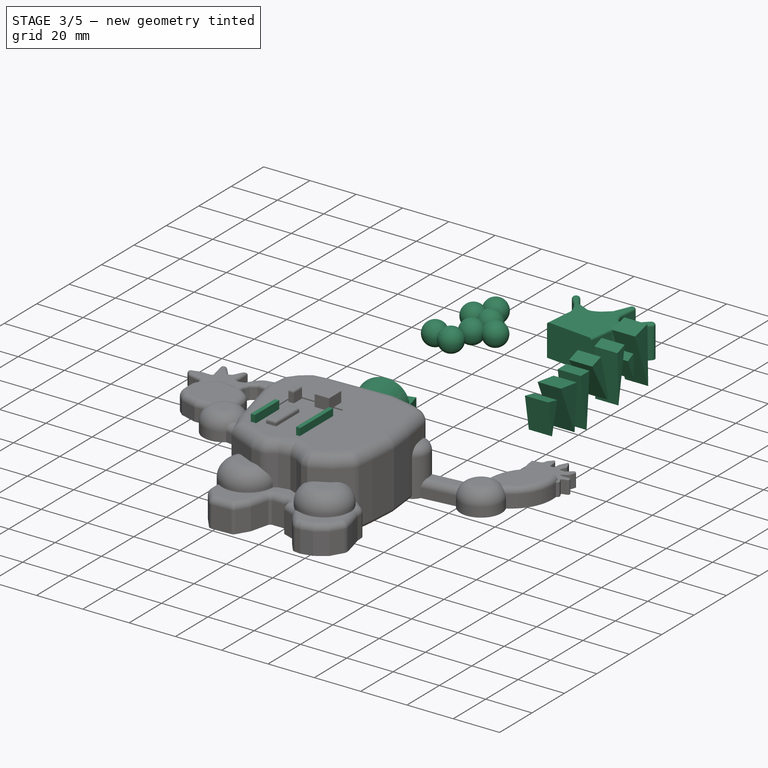
[diagram: stage 3 of 5 — iso view after this stage's code; geometry added in this stage tinted green]
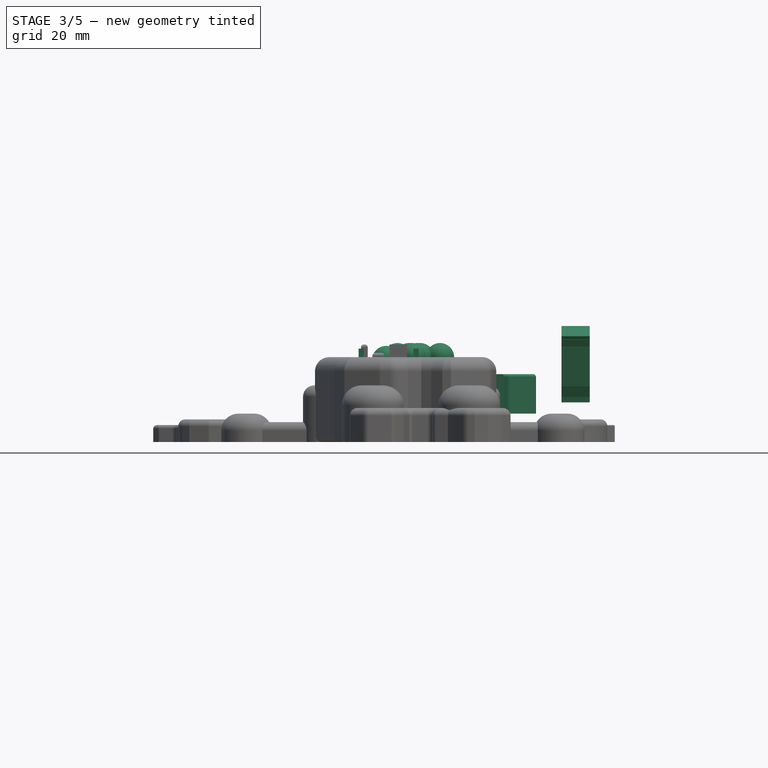
[diagram: stage 3 of 5 — front view after this stage's code; geometry added in this stage tinted green]
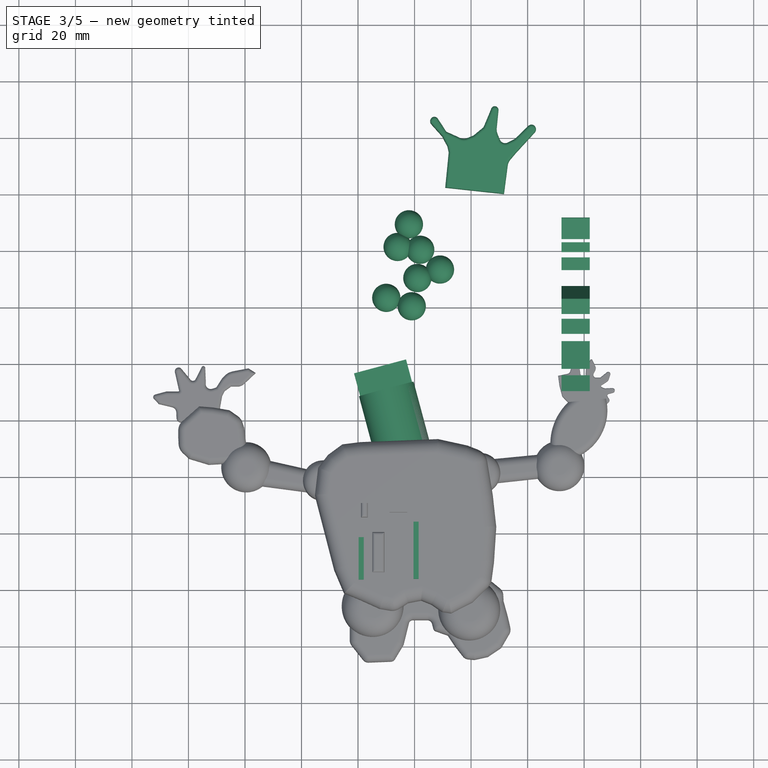
[diagram: stage 3 of 5 — top view after this stage's code; geometry added in this stage tinted green]
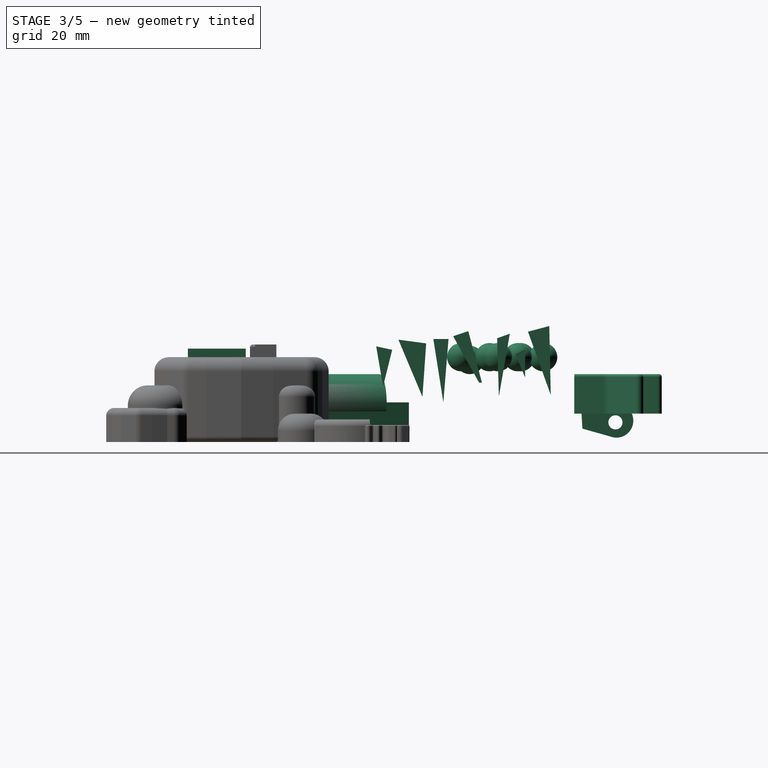
[diagram: stage 3 of 5 — right view after this stage's code; geometry added in this stage tinted green]
FEATURE [Part::Sphere] Sphere008  label="Esfera006"
  Angle1 = -90
  Angle2 = 90
  Angle3 = 360
  Placement = pos=(-6,61,30) rot=(0,0,1;0rad)
  Radius = 5
FEATURE [Part::Sphere] Sphere009  label="Esfera007"
  Angle1 = -90
  Angle2 = 90
  Angle3 = 360
  Placement = pos=(-1,40,30) rot=(0,0,1;0rad)
  Radius = 5
FEATURE [Part::Sphere] Sphere010  label="Esfera008"
  Angle1 = -90
  Angle2 = 90
  Angle3 = 360
  Placement = pos=(2,60,30) rot=(0,0,1;0rad)
  Radius = 5
FEATURE [Part::Sphere] Sphere011  label="Esfera009"
  Angle1 = -90
  Angle2 = 90
  Angle3 = 360
  Placement = pos=(-10,43,29) rot=(0,0,1;0rad)
  Radius = 5
FEATURE [Part::Sphere] Sphere012  label="Esfera010"
  Angle1 = -90
  Angle2 = 90
  Angle3 = 360
  Placement = pos=(9,53,30) rot=(0,0,1;0rad)
  Radius = 5
FEATURE [Part::Sphere] Sphere013  label="Esfera011"
  Angle1 = -90
  Angle2 = 90
  Angle3 = 360
  Placement = pos=(1,50,30) rot=(0,0,1;0rad)
  Radius = 5
FEATURE [Part::Sphere] Sphere014  label="Esfera012"
  Angle1 = -90
  Angle2 = 90
  Angle3 = 360
  Placement = pos=(-2,69,30) rot=(0,0,1;0rad)
  Radius = 5
FEATURE [Sketcher::SketchObject] Sketch005
  Placement = pos=(62,0,0) rot=(0.57735,0.57735,0.57735;2.0944rad)
  sketch-geometry (22):
    g0: LineSegment StartX=63.6177 StartY=39.0117 StartZ=0 EndX=71.6705 EndY=16.6426 EndZ=0
    g1: LineSegment StartX=71.6705 StartY=16.6426 StartZ=0 EndX=71.1471 EndY=41.0032 EndZ=0
    g2: LineSegment StartX=71.1471 StartY=41.0032 StartZ=0 EndX=63.6177 EndY=39.0117 EndZ=0
    g3: LineSegment StartX=57.1754 StartY=38.2959 StartZ=0 EndX=53.3104 EndY=16.0656 EndZ=0
    g4: LineSegment StartX=53.3104 StartY=16.0656 StartZ=0 EndX=52.7016 EndY=36.6853 EndZ=0
    g5: LineSegment StartX=52.7016 StartY=36.6853 StartZ=0 EndX=57.1754 EndY=38.2959 EndZ=0
    g6: LineSegment StartX=42.5013 StartY=39.1906 StartZ=0 EndX=47.333 EndY=20.9375 EndZ=0
    g7: LineSegment StartX=47.333 StartY=20.9375 StartZ=0 EndX=46.2945 EndY=21.0235 EndZ=0
    g8: LineSegment StartX=46.2945 StartY=21.0235 StartZ=0 EndX=37.1327 EndY=37.4011 EndZ=0
    g9: LineSegment StartX=37.1327 StartY=37.4011 StartZ=0 EndX=42.5013 EndY=39.1906 EndZ=0
    g10: LineSegment StartX=35.4937 StartY=36.4047 StartZ=0 EndX=33.6658 EndY=14.0076 EndZ=0
    g11: LineSegment StartX=33.6658 StartY=14.0076 StartZ=0 EndX=30.1251 EndY=36.4047 EndZ=0
    g12: LineSegment StartX=30.1251 StartY=36.4047 StartZ=0 EndX=35.4937 EndY=36.4047 EndZ=0
    g13: LineSegment StartX=27.5854 StartY=34.8683 StartZ=0 EndX=26.2757 EndY=15.9721 EndZ=0
    g14: LineSegment StartX=26.2757 StartY=15.9721 StartZ=0 EndX=17.7631 EndY=36.178 EndZ=0
    g15: LineSegment StartX=17.7631 StartY=36.178 StartZ=0 EndX=27.5854 EndY=34.8683 EndZ=0
    g16: LineSegment StartX=59.1586 StartY=31.0768 StartZ=0 EndX=62.596 EndY=22.827 EndZ=0
    g17: LineSegment StartX=62.596 StartY=22.827 StartZ=0 EndX=62.596 EndY=32.7464 EndZ=0
    g18: LineSegment StartX=62.596 StartY=32.7464 StartZ=0 EndX=59.1586 EndY=31.0768 EndZ=0
    g19: LineSegment StartX=15.5704 StartY=32.596 StartZ=0 EndX=12.335 EndY=19.6544 EndZ=0
    g20: LineSegment StartX=12.335 StartY=19.6544 StartZ=0 EndX=9.90844 EndY=33.8093 EndZ=0
    g21: LineSegment StartX=9.90844 StartY=33.8093 StartZ=0 EndX=15.5704 EndY=32.596 EndZ=0
  constraints (24):
    c: Coincident(g0,g1)
    c: Coincident(g1,g2)
    c: Coincident(g0,g2)
    c: Coincident(g3,g4)
    c: Coincident(g4,g5)
    c: Coincident(g5,g3)
    c: Coincident(g6,g7)
    c: Coincident(g7,g8)
    c: Coincident(g8,g9)
    c: Coincident(g9,g6)
    c: Coincident(g10,g11)
    c: Coincident(g11,g12)
    c: Coincident(g12,g10)
    c: Horizontal(g12)
    c: Coincident(g13,g14)
    c: Coincident(g14,g15)
    c: Coincident(g15,g13)
    c: Coincident(g16,g17)
    c: Vertical(g17)
    c: Coincident(g17,g18)
    c: Coincident(g18,g16)
    c: Coincident(g19,g20)
    c: Coincident(g20,g21)
    c: Coincident(g21,g19)
FEATURE [PartDesign::Pad] Pad005
  Length = 10
  Length2 = 100
  Placement = pos=(62,0,0) rot=(0.57735,0.57735,0.57735;2.0944rad)
  Reversed = true
  Sketch = -> Sketch005
  Type = 0
FEATURE [Sketcher::SketchObject] Sketch006
  Placement = pos=(0,0,10) rot=(0,0,1;0rad)
  sketch-geometry (26):
    g0: LineSegment StartX=10.8642 StartY=82.2479 StartZ=0 EndX=12.1092 EndY=94.7275 EndZ=0
    g1: LineSegment StartX=12.1092 StartY=94.7275 StartZ=0 EndX=11.6208 EndY=96.8879 EndZ=0
    g2: LineSegment StartX=11.6208 StartY=96.8879 StartZ=0 EndX=9.73129 EndY=100.427 EndZ=0
    g3: LineSegment StartX=9.73129 StartY=100.427 StartZ=0 EndX=5.90421 EndY=104.731 EndZ=0
    g4: LineSegment StartX=8.2482 StartY=106.518 StartZ=0 EndX=11.2335 EndY=101.919 EndZ=0
    g5: LineSegment StartX=11.2335 StartY=101.919 StartZ=0 EndX=16.0975 EndY=99.7144 EndZ=0
    g6: LineSegment StartX=18.6339 StartY=99.6574 StartZ=0 EndX=20.8448 EndY=100.542 EndZ=0
    g7: LineSegment StartX=20.8448 StartY=100.542 StartZ=0 EndX=24.3883 EndY=103.468 EndZ=0
    g8: LineSegment StartX=24.3883 StartY=103.468 StartZ=0 EndX=26.3525 EndY=108.084 EndZ=0
    g9: LineSegment StartX=26.3525 StartY=108.084 StartZ=0 EndX=27.1653 EndY=110.116 EndZ=0
    g10: LineSegment StartX=29.6942 StartY=109.495 StartZ=0 EndX=29.0801 EndY=103.422 EndZ=0
    g11: LineSegment StartX=29.4666 StartY=100.821 StartZ=0 EndX=30.1871 EndY=99.0962 EndZ=0
    g12: LineSegment StartX=35.9192 StartY=99.7668 StartZ=0 EndX=40.2813 EndY=103.986 EndZ=0
    g13: LineSegment StartX=42.5425 StartY=101.782 StartZ=0 EndX=35.8806 EndY=94.5293 EndZ=0
    g14: LineSegment StartX=35.8806 StartY=94.5293 StartZ=0 EndX=33.9168 EndY=92.2169 EndZ=0
    g15: LineSegment StartX=32.9722 StartY=90.084 StartZ=0 EndX=31.6557 EndY=79.9956 EndZ=0
    g16: LineSegment StartX=31.6557 StartY=79.9956 StartZ=0 EndX=10.8642 EndY=82.2479 EndZ=0
    g17: ArcOfCircle CenterX=28.3861 CenterY=109.628 CenterZ=0 NormalX=0 NormalY=0 NormalZ=1 Radius=1.31485 StartAngle=6.1824 EndAngle=9.04427
    g18: ArcOfCircle CenterX=41.3793 CenterY=102.85 CenterZ=0 NormalX=0 NormalY=0 NormalZ=1 Radius=1.57942 StartAngle=5.54021 EndAngle=8.62269
    g19: ArcOfCircle CenterX=7.0086 CenterY=105.713 CenterZ=0 NormalX=0 NormalY=0 NormalZ=1 Radius=1.47783 StartAngle=0.575721 EndAngle=3.86839
    g20: ArcOfCircle CenterX=37.0559 CenterY=89.5511 CenterZ=0 NormalX=0 NormalY=0 NormalZ=1 Radius=4.11828 StartAngle=2.43753 EndAngle=3.01183
    g21: ArcOfCircle CenterX=17.4326 CenterY=102.66 CenterZ=0 NormalX=0 NormalY=0 NormalZ=1 Radius=3.23439 StartAngle=4.28691 EndAngle=5.09292
    g22: LineSegment StartX=32.9343 StartY=98.0596 StartZ=0 EndX=34.7336 EndY=98.9363 EndZ=0
    g23: ArcOfCircle CenterX=32.05 CenterY=99.8745 CenterZ=0 NormalX=0 NormalY=0 NormalZ=1 Radius=2.01889 StartAngle=3.53734 EndAngle=5.16578
    g24: ArcOfCircle CenterX=34.4043 CenterY=102.884 CenterZ=0 NormalX=0 NormalY=0 NormalZ=1 Radius=5.35135 StartAngle=3.04081 EndAngle=3.53734
    g25: ArcOfCircle CenterX=32.7144 CenterY=103.08 CenterZ=0 NormalX=0 NormalY=0 NormalZ=1 Radius=4.60985 StartAngle=5.16578 EndAngle=5.4811
  constraints (27):
    c: Coincident(g0,g1)
    c: Coincident(g1,g2)
    c: Coincident(g2,g3)
    c: Coincident(g4,g5)
    c: Coincident(g6,g7)
    c: Coincident(g7,g8)
    c: Coincident(g8,g9)
    c: Coincident(g13,g14)
    c: Coincident(g15,g16)
    c: PointOnObject(g16,g0)
    c: Coincident(g0,g16)
    c: Tangent(g9,g17) = 1.5708
    c: Tangent(g10,g17) = 1.5708
    c: Tangent(g12,g18) = 1.5708
    c: Tangent(g13,g18) = 1.5708
    c: Tangent(g3,g19) = 1.5708
    c: Tangent(g4,g19) = 1.5708
    c: Tangent(g15,g20) = -1.5708
    c: Tangent(g14,g20) = -1.5708
    c: Tangent(g5,g21) = -1.5708
    c: Tangent(g6,g21) = -1.5708
    c: Tangent(g11,g23) = -1.5708
    c: Tangent(g22,g23) = -1.5708
    c: Tangent(g10,g24) = -1.5708
    c: Tangent(g11,g24) = -1.5708
    c: Tangent(g22,g25) = -1.5708
    c: Tangent(g12,g25) = -1.5708
FEATURE [PartDesign::Pad] Pad006  label="Corona-bruto"
  Length = 14
  Length2 = 100
  Placement = pos=(0,0,10) rot=(0,0,1;0rad)
  Sketch = -> Sketch006
  Type = 0
FEATURE [Part::Fillet] Fillet006  label="corona-sin-anilla"
  Base = -> Pad006
  Edges = 25 edges r=1: [Edge4,Edge7,Edge10,Edge13,Edge19,Edge22,Edge25,Edge28,Edge31,Edge34,Edge37,Edge40,Edge43,Edge46,Edge49,Edge52,Edge55,Edge58,Edge61,Edge64,Edge67,Edge70,Edge73,Edge76,Edge78]
FEATURE [Sketcher::SketchObject] Sketch007
  Placement = pos=(22,0,0) rot=(0.57735,0.57735,0.57735;2.0944rad)
  sketch-geometry (5):
    g0: ArcOfCircle CenterX=94.8878 CenterY=7.51939 CenterZ=0 NormalX=0 NormalY=0 NormalZ=1 Radius=6 StartAngle=4.32969 EndAngle=8.72677
    g1: Circle CenterX=94.5586 CenterY=6.92689 CenterZ=0 NormalX=0 NormalY=0 NormalZ=1 Radius=2.5
    g2: LineSegment StartX=92.6472 StartY=1.95343 StartZ=0 EndX=82.8707 EndY=4.70826 EndZ=0
    g3: LineSegment StartX=82.8707 StartY=4.70826 StartZ=0 EndX=82.4757 EndY=11.4232 EndZ=0
    g4: LineSegment StartX=82.4757 StartY=11.4232 StartZ=0 EndX=90.2911 EndY=11.3755 EndZ=0
  constraints (6):
    c: Radius(g0) = 6
    c: Radius(g1) = 2.5
    c: Coincident(g2,g3)
    c: Coincident(g3,g4)
    c: Coincident(g0,g2)
    c: Coincident(g0,g4)
FEATURE [PartDesign::Pad] Pad007  label="Anilla"
  Length = 7
  Length2 = 100
  Placement = pos=(22,0,0) rot=(0.57735,0.57735,0.57735;2.0944rad)
  Sketch = -> Sketch007
  Type = 0
FEATURE [Part::MultiFuse] Fusion006  label="Corona-anilla"
  Shapes = -> [Fillet006,Pad007]
FEATURE [Part::Cylinder] Cylinder  label="Cuello-cil"
  Angle = 360
  Height = 32
  Placement = pos=(-10,11,14) rot=(0.983106,0.129428,0.129428;1.58783rad)
  Radius = 10
FEATURE [Part::Box] Box  label="Cuello-Cubo"
  Height = 10
  Length = 19
  Placement = pos=(-10.5,-24,4) rot=(0,0,1;0.261799rad)
  Width = 42
FEATURE [Part::MultiFuse] Fusion008  label="Cuello"
  Shapes = -> [Box,Cylinder]
FEATURE [Sketcher::SketchObject] Sketch012
  Placement = pos=(0,0,29.5) rot=(0,0,1;0rad)
  Support = -> Fillet010 [Face10]
  sketch-geometry (8):
    g0: LineSegment StartX=-19.7827 StartY=-41.7274 StartZ=0 EndX=-17.9764 EndY=-41.7274 EndZ=0
    g1: LineSegment StartX=-17.9764 StartY=-41.7274 StartZ=0 EndX=-17.9764 EndY=-56.7215 EndZ=0
    g2: LineSegment StartX=-17.9764 StartY=-56.7215 StartZ=0 EndX=-19.7827 EndY=-56.7215 EndZ=0
    g3: LineSegment StartX=-19.7827 StartY=-56.7215 StartZ=0 EndX=-19.7827 EndY=-41.7274 EndZ=0
    g4: LineSegment StartX=1.4579 StartY=-36.2401 StartZ=0 EndX=-0.348395 EndY=-36.2401 EndZ=0
    g5: LineSegment StartX=-0.348395 StartY=-36.2401 StartZ=0 EndX=-0.348395 EndY=-56.522 EndZ=0
    g6: LineSegment StartX=-0.348395 StartY=-56.522 StartZ=0 EndX=1.4579 EndY=-56.522 EndZ=0
    g7: LineSegment StartX=1.4579 StartY=-56.522 StartZ=0 EndX=1.4579 EndY=-36.2401 EndZ=0
  constraints (17):
    c: Coincident(g0,g1)
    c: Coincident(g1,g2)
    c: Coincident(g2,g3)
    c: Coincident(g3,g0)
    c: Horizontal(g0)
    c: Horizontal(g2)
    c: Vertical(g1)
    c: Vertical(g3)
    c: Coincident(g4,g5)
    c: Coincident(g5,g6)
    c: Coincident(g6,g7)
    c: Coincident(g7,g4)
    c: Horizontal(g4)
    c: Horizontal(g6)
    c: Vertical(g5)
    c: Vertical(g7)
    c: Equal(g6,g2)
FEATURE [PartDesign::Pad] Pad012  label="Cuerpo-logo"
  Length = 3.5
  Length2 = 100
  Sketch = -> Sketch012
  Type = 0
FEATURE [Part::FeaturePython] Clone001  label="Clone of Cuerpo-logo"  # Draft clone (typed FeaturePython)
  Objects = -> [Pad012]
  Scale = (1,1,1)
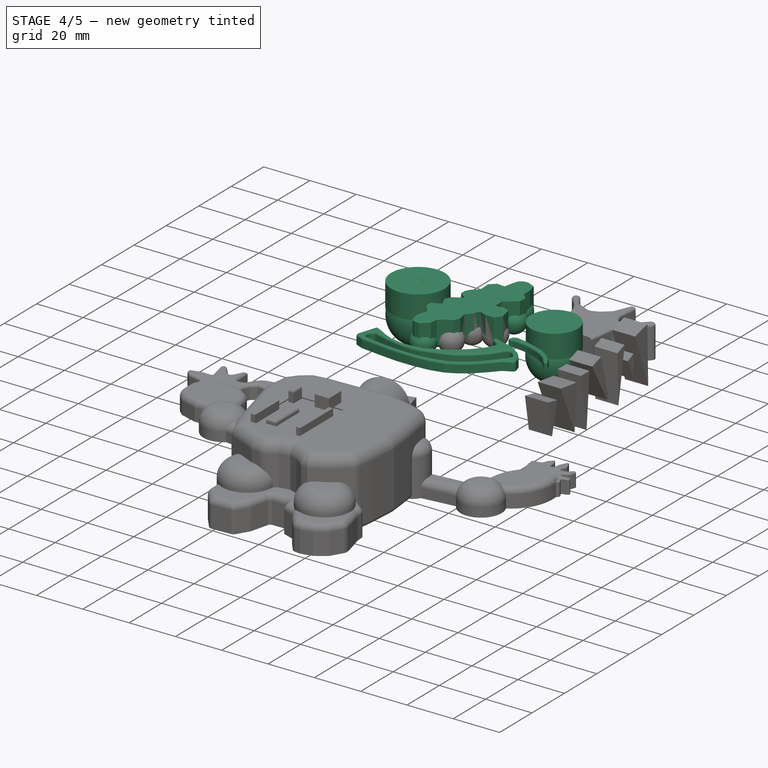
[diagram: stage 4 of 5 — iso view after this stage's code; geometry added in this stage tinted green]
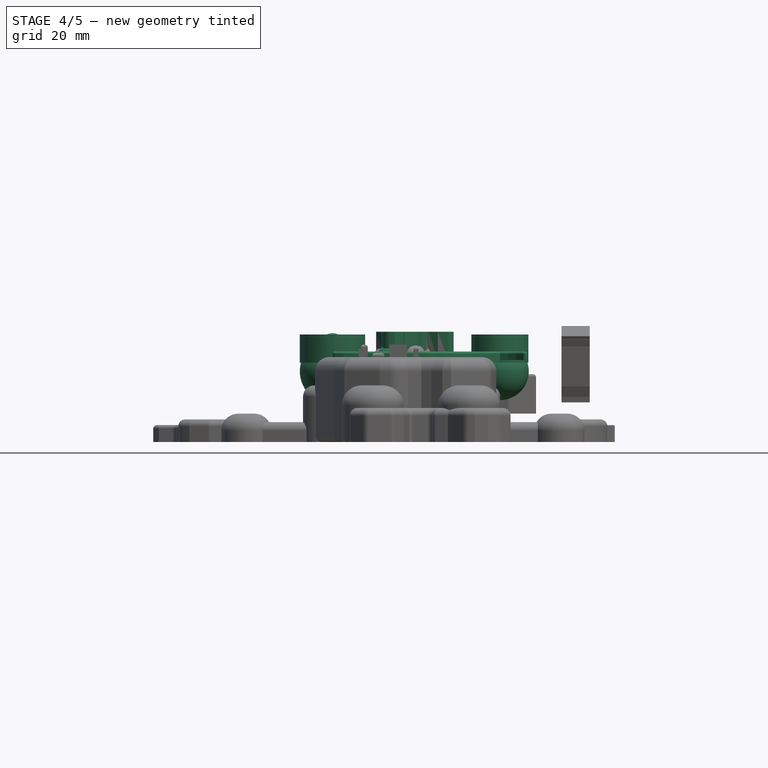
[diagram: stage 4 of 5 — front view after this stage's code; geometry added in this stage tinted green]
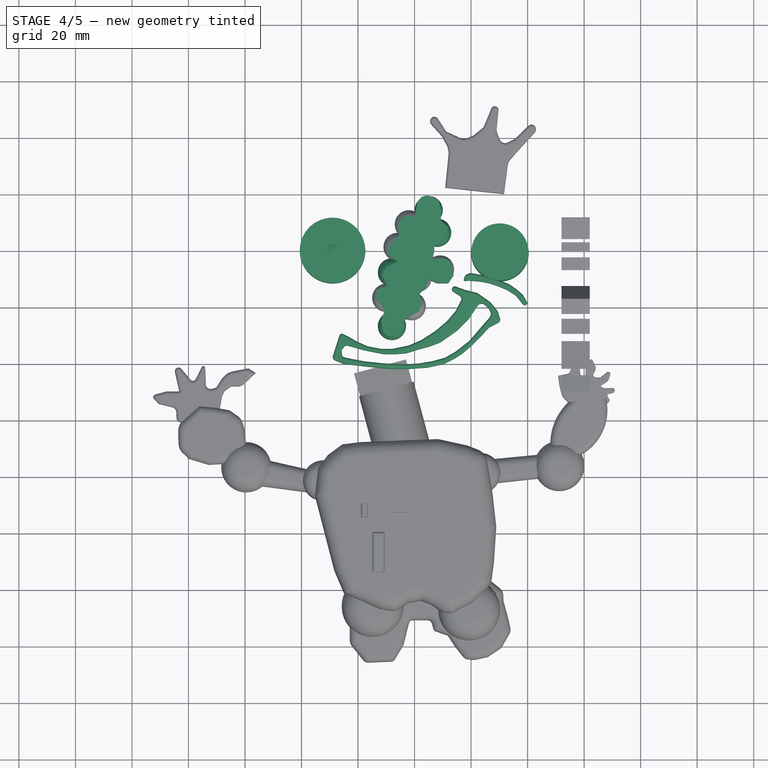
[diagram: stage 4 of 5 — top view after this stage's code; geometry added in this stage tinted green]
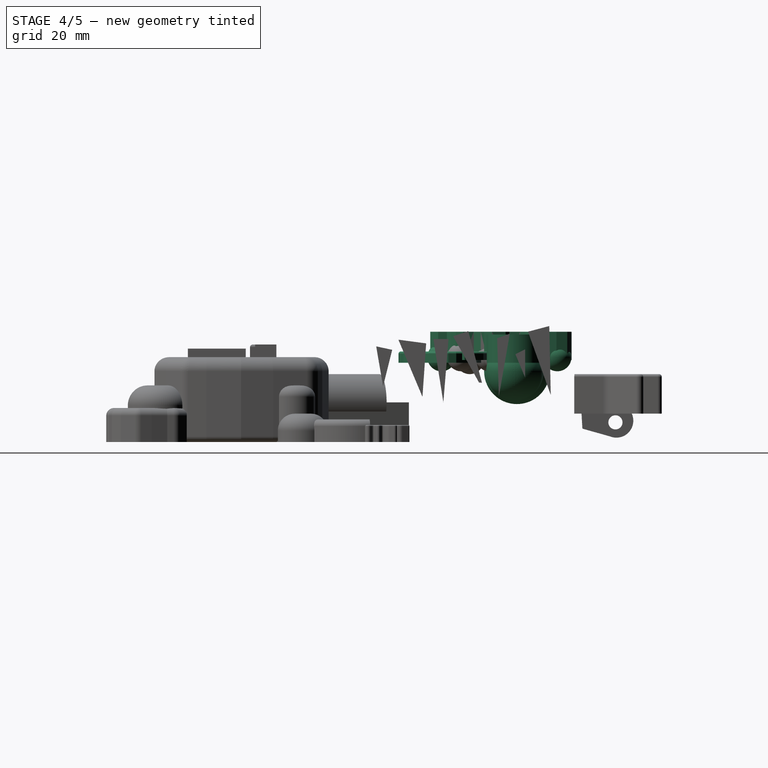
[diagram: stage 4 of 5 — right view after this stage's code; geometry added in this stage tinted green]
FEATURE [Sketcher::SketchObject] Sketch001
  Placement = pos=(0,0,28) rot=(0,0,1;0rad)
  sketch-geometry (2):
    g0: Circle CenterX=-29.0446 CenterY=59.6572 CenterZ=0 NormalX=0 NormalY=0 NormalZ=1 Radius=11.5712
    g1: Circle CenterX=30.1888 CenterY=59.1203 CenterZ=0 NormalX=0 NormalY=0 NormalZ=1 Radius=10.0851
FEATURE [PartDesign::Pad] Pad001  label="Cuenca-ojos"
  Length = 10
  Length2 = 100
  Placement = pos=(0,0,28) rot=(0,0,1;0rad)
  Sketch = -> Sketch001
  Type = 0
FEATURE [Part::Sphere] Sphere  label="Esfera1"
  Angle1 = -90
  Angle2 = 90
  Angle3 = 360
  Placement = pos=(30.2,59,25) rot=(0,0,1;0rad)
  Radius = 10.2
FEATURE [Part::Sphere] Sphere001  label="Esfera2"
  Angle1 = -90
  Angle2 = 90
  Angle3 = 360
  Placement = pos=(-29,59.7,25) rot=(0,0,1;0rad)
  Radius = 11.6
FEATURE [Part::Sphere] Sphere002  label="Esfera1-1"
  Angle1 = -90
  Angle2 = 90
  Angle3 = 360
  Placement = pos=(30.2,59,33) rot=(0,0,1;0rad)
  Radius = 4
FEATURE [Part::Sphere] Sphere003  label="Esfera2-1"
  Angle1 = -90
  Angle2 = 90
  Angle3 = 360
  Placement = pos=(-29,59.7,34) rot=(0,0,1;0rad)
  Radius = 4.5
FEATURE [Part::MultiFuse] Fusion  label="pupilas"
  Shapes = -> [Sphere003,Sphere002,Sphere001,Sphere]
FEATURE [Sketcher::SketchObject] Sketch002
  Placement = pos=(0,0,29) rot=(0,0,1;0rad)
  sketch-geometry (21):
    g0: LineSegment StartX=17.4163 StartY=49.5037 StartZ=0 EndX=17.7553 EndY=50.4529 EndZ=0
    g1: LineSegment StartX=18.5903 StartY=51.3343 StartZ=0 EndX=19.2816 EndY=51.6242 EndZ=0
    g2: LineSegment StartX=20.0422 StartY=51.7099 StartZ=0 EndX=24.2847 EndY=50.9699 EndZ=0
    g3: LineSegment StartX=24.2847 StartY=50.9699 StartZ=0 EndX=29.7286 EndY=49.2452 EndZ=0
    g4: LineSegment StartX=29.7286 StartY=49.2452 StartZ=0 EndX=33.4476 EndY=47.8438 EndZ=0
    g5: LineSegment StartX=33.4476 StartY=47.8438 StartZ=0 EndX=36.5738 EndY=45.6339 EndZ=0
    g6: LineSegment StartX=36.5738 StartY=45.6339 StartZ=0 EndX=38.5142 EndY=43.8013 EndZ=0
    g7: LineSegment StartX=38.5142 StartY=43.8013 StartZ=0 EndX=39.9091 EndY=41.268 EndZ=0
    g8: LineSegment StartX=39.9091 StartY=41.268 StartZ=0 EndX=39.9091 EndY=41.2326 EndZ=0
    g9: LineSegment StartX=38.2889 StartY=40.6919 StartZ=0 EndX=37.7178 EndY=41.4523 EndZ=0
    g10: LineSegment StartX=37.7178 StartY=41.4523 StartZ=0 EndX=35.8731 EndY=43.6935 EndZ=0
    g11: LineSegment StartX=35.8731 StartY=43.6935 StartZ=0 EndX=33.0164 EndY=45.58 EndZ=0
    g12: LineSegment StartX=33.0164 StartY=45.58 StartZ=0 EndX=29.7825 EndY=46.9814 EndZ=0
    g13: LineSegment StartX=29.7825 StartY=46.9814 StartZ=0 EndX=26.4946 EndY=48.0594 EndZ=0
    g14: LineSegment StartX=26.4946 StartY=48.0594 StartZ=0 EndX=23.4762 EndY=48.6523 EndZ=0
    g15: LineSegment StartX=23.4762 StartY=48.6523 StartZ=0 EndX=19.326 EndY=49.0296 EndZ=0
    g16: LineSegment StartX=19.326 StartY=49.0296 StartZ=0 EndX=17.8987 EndY=48.8868 EndZ=0
    g17: ArcOfCircle CenterX=19.1722 CenterY=49.9469 CenterZ=0 NormalX=0 NormalY=0 NormalZ=1 Radius=1.50453 StartAngle=1.96788 EndAngle=2.79857
    g18: ArcOfCircle CenterX=17.8526 CenterY=49.3478 CenterZ=0 NormalX=0 NormalY=0 NormalZ=1 Radius=0.463315 StartAngle=2.79857 EndAngle=4.81206
    g19: ArcOfCircle CenterX=39.0088 CenterY=41.2326 CenterZ=0 NormalX=0 NormalY=0 NormalZ=1 Radius=0.900316 StartAngle=3.7858 EndAngle=6.28319
    g20: ArcOfCircle CenterX=19.8082 CenterY=50.3685 CenterZ=0 NormalX=0 NormalY=0 NormalZ=1 Radius=1.36165 StartAngle=1.39811 EndAngle=1.96788
  constraints (22):
    c: Coincident(g2,g3)
    c: Coincident(g3,g4)
    c: Coincident(g4,g5)
    c: Coincident(g5,g6)
    c: Coincident(g6,g7)
    c: Coincident(g7,g8)
    c: Vertical(g8)
    c: Coincident(g9,g10)
    c: Coincident(g10,g11)
    c: Coincident(g11,g12)
    c: Coincident(g12,g13)
    c: Coincident(g13,g14)
    c: Coincident(g14,g15)
    c: Coincident(g15,g16)
    c: Tangent(g0,g17) = 1.5708
    c: Tangent(g1,g17) = 1.5708
    c: Tangent(g0,g18) = 1.5708
    c: Tangent(g16,g18) = 1.5708
    c: Tangent(g9,g19) = 1.5708
    c: Tangent(g8,g19) = 1.5708
    c: Tangent(g1,g20) = 1.5708
    c: Tangent(g2,g20) = 1.5708
FEATURE [PartDesign::Pad] Pad002
  Length = 3
  Length2 = 100
  Placement = pos=(0,0,29) rot=(0,0,1;0rad)
  Sketch = -> Sketch002
  Type = 0
FEATURE [Part::Fillet] Fillet004  label="parpado"
  Base = -> Pad002
  Edges = 20 edges r=0.8: [Edge4,Edge7,Edge10,Edge13,Edge16,Edge19,Edge22,Edge25,Edge28,Edge31,Edge37,Edge40,Edge43,Edge46,Edge49,Edge52,Edge55,Edge58,Edge61,Edge63]
FEATURE [Sketcher::SketchObject] Sketch003
  Placement = pos=(0,1,28) rot=(0,0,1;0rad)
  sketch-geometry (72):
    g0: LineSegment StartX=-24.8495 StartY=24.6509 StartZ=0 EndX=-25.7635 EndY=23.5193 EndZ=0
    g1: LineSegment StartX=-25.7635 StartY=23.5193 StartZ=0 EndX=-25.6778 EndY=21.9332 EndZ=0
    g2: LineSegment StartX=-24.8003 StartY=20.902 StartZ=0 EndX=-22.011 EndY=20.2935 EndZ=0
    g3: LineSegment StartX=-22.011 StartY=20.2935 StartZ=0 EndX=-17.3369 EndY=19.4376 EndZ=0
    g4: LineSegment StartX=-17.3369 StartY=19.4376 StartZ=0 EndX=-10.8194 EndY=18.7793 EndZ=0
    g5: LineSegment StartX=-10.8194 StartY=18.7793 StartZ=0 EndX=-4.03858 EndY=18.4501 EndZ=0
    g6: LineSegment StartX=-4.03858 StartY=18.4501 StartZ=0 EndX=1.22806 EndY=18.7135 EndZ=0
    g7: LineSegment StartX=1.22806 StartY=18.7135 StartZ=0 EndX=6.0997 EndY=19.5035 EndZ=0
    g8: LineSegment StartX=6.0997 StartY=19.5035 StartZ=0 EndX=10.9055 EndY=20.8201 EndZ=0
    g9: LineSegment StartX=10.9055 StartY=20.8201 StartZ=0 EndX=14.7897 EndY=23.1243 EndZ=0
    g10: LineSegment StartX=14.7897 StartY=23.1243 StartZ=0 EndX=19.398 EndY=26.7451 EndZ=0
    g11: LineSegment StartX=19.398 StartY=26.7451 StartZ=0 EndX=22.163 EndY=29.9709 EndZ=0
    g12: LineSegment StartX=22.163 StartY=29.9709 StartZ=0 EndX=24.9279 EndY=33.1967 EndZ=0
    g13: LineSegment StartX=24.9279 StartY=33.1967 StartZ=0 EndX=26.5738 EndY=35.0401 EndZ=0
    g14: LineSegment StartX=26.5738 StartY=35.0401 StartZ=0 EndX=26.8795 EndY=35.7874 EndZ=0
    g15: LineSegment StartX=26.8004 StartY=37.1515 StartZ=0 EndX=26.1129 EndY=38.3975 EndZ=0
    g16: LineSegment StartX=26.1129 StartY=38.3975 StartZ=0 EndX=24.4671 EndY=39.78 EndZ=0
    g17: LineSegment StartX=24.4671 StartY=39.78 StartZ=0 EndX=23.6842 EndY=39.8427 EndZ=0
    g18: LineSegment StartX=22.3352 StartY=39.1953 StartZ=0 EndX=21.5705 EndY=38.0684 EndZ=0
    g19: LineSegment StartX=21.5705 StartY=38.0684 StartZ=0 EndX=19.2663 EndY=34.5792 EndZ=0
    g20: LineSegment StartX=19.2663 StartY=34.5792 StartZ=0 EndX=15.3163 EndY=30.5634 EndZ=0
    g21: LineSegment StartX=15.3163 StartY=30.5634 StartZ=0 EndX=12.3538 EndY=28.3909 EndZ=0
    g22: LineSegment StartX=12.3538 StartY=28.3909 StartZ=0 EndX=9.06219 EndY=26.1526 EndZ=0
    g23: LineSegment StartX=9.06219 StartY=26.1526 StartZ=0 EndX=5.24387 EndY=24.7043 EndZ=0
    g24: LineSegment StartX=5.24387 StartY=24.7043 StartZ=0 EndX=0.89889 EndY=23.5193 EndZ=0
    g25: LineSegment StartX=0.89889 StartY=23.5193 StartZ=0 EndX=-2.85359 EndY=22.3343 EndZ=0
    g26: LineSegment StartX=-2.85359 StartY=22.3343 StartZ=0 EndX=-6.73774 EndY=22.0051 EndZ=0
    g27: LineSegment StartX=-6.73774 StartY=22.0051 StartZ=0 EndX=-10.6877 EndY=22.0051 EndZ=0
    g28: LineSegment StartX=-10.6877 StartY=22.0051 StartZ=0 EndX=-14.506 EndY=22.7293 EndZ=0
    g29: LineSegment StartX=-14.506 StartY=22.7293 StartZ=0 EndX=-18.3243 EndY=23.5193 EndZ=0
    g30: LineSegment StartX=-18.3243 StartY=23.5193 StartZ=0 EndX=-21.221 EndY=24.3751 EndZ=0
    g31: LineSegment StartX=-21.221 StartY=24.3751 StartZ=0 EndX=-23.6613 EndY=25.036 EndZ=0
    g32: ArcOfCircle CenterX=23.5657 CenterY=38.3604 CenterZ=0 NormalX=0 NormalY=0 NormalZ=1 Radius=1.487 StartAngle=1.49097 EndAngle=2.54539
    g33: ArcOfCircle CenterX=25.4144 CenterY=36.3868 CenterZ=0 NormalX=0 NormalY=0 NormalZ=1 Radius=1.58297 StartAngle=5.89486 EndAngle=6.78735
    g34: ArcOfCircle CenterX=-23.9601 CenterY=23.9325 CenterZ=0 NormalX=0 NormalY=0 NormalZ=1 Radius=1.14322 StartAngle=1.30631 EndAngle=2.46218
    g35: ArcOfCircle CenterX=-24.5622 CenterY=21.9935 CenterZ=0 NormalX=0 NormalY=0 NormalZ=1 Radius=1.11718 StartAngle=3.19559 EndAngle=4.49757
    g36: LineSegment StartX=-26.569 StartY=28.7023 StartZ=0 EndX=-28.8798 EndY=21.4616 EndZ=0
    g37: LineSegment StartX=-28.1191 StartY=19.8257 StartZ=0 EndX=-25.1052 EndY=18.5818 EndZ=0
    g38: LineSegment StartX=-25.1052 StartY=18.5818 StartZ=0 EndX=-16.6785 EndY=17.5943 EndZ=0
    g39: LineSegment StartX=-16.6785 StartY=17.5943 StartZ=0 EndX=-9.04189 EndY=16.8043 EndZ=0
    g40: LineSegment StartX=-9.04189 StartY=16.8043 StartZ=0 EndX=-1.73443 EndY=16.8043 EndZ=0
    g41: LineSegment StartX=-1.73443 StartY=16.8043 StartZ=0 EndX=4.65137 EndY=17.2651 EndZ=0
    g42: LineSegment StartX=4.65137 StartY=17.2651 StartZ=0 EndX=10.2472 EndY=18.516 EndZ=0
    g43: LineSegment StartX=10.2472 StartY=18.516 StartZ=0 EndX=14.3947 EndY=20.5568 EndZ=0
    g44: LineSegment StartX=14.3947 StartY=20.5568 StartZ=0 EndX=17.028 EndY=22.3343 EndZ=0
    g45: LineSegment StartX=17.028 StartY=22.3343 StartZ=0 EndX=20.4513 EndY=25.2309 EndZ=0
    g46: LineSegment StartX=20.4513 StartY=25.2309 StartZ=0 EndX=23.8746 EndY=28.7201 EndZ=0
    g47: LineSegment StartX=23.8746 StartY=28.7201 StartZ=0 EndX=26.2216 EndY=31.3208 EndZ=0
    g48: LineSegment StartX=26.4287 StartY=31.4793 StartZ=0 EndX=29.5919 EndY=33.0852 EndZ=0
    g49: LineSegment StartX=30.2592 StartY=34.6608 StartZ=0 EndX=29.4704 EndY=37.2125 EndZ=0
    g50: LineSegment StartX=29.4704 StartY=37.2125 StartZ=0 EndX=26.9029 EndY=40.3725 EndZ=0
    g51: LineSegment StartX=26.9029 StartY=40.3725 StartZ=0 EndX=22.2946 EndY=43.6642 EndZ=0
    g52: LineSegment StartX=22.2946 StartY=43.6642 StartZ=0 EndX=17.9087 EndY=44.7681 EndZ=0
    g53: LineSegment StartX=17.9087 StartY=44.7681 StartZ=0 EndX=14.5796 EndY=45.9792 EndZ=0
    g54: LineSegment StartX=13.6705 StartY=44.125 StartZ=0 EndX=15.9375 EndY=42.6948 EndZ=0
    g55: LineSegment StartX=16.425 StartY=40.9507 StartZ=0 EndX=14.7238 EndY=37.5417 EndZ=0
    g56: LineSegment StartX=14.7238 StartY=37.5417 StartZ=0 EndX=11.3663 EndY=33.5917 EndZ=0
    g57: LineSegment StartX=11.3663 StartY=33.5917 StartZ=0 EndX=7.35053 EndY=30.2342 EndZ=0
    g58: LineSegment StartX=7.35053 StartY=30.2342 StartZ=0 EndX=2.47888 EndY=27.0743 EndZ=0
    g59: LineSegment StartX=2.47888 StartY=27.0743 StartZ=0 EndX=-2.06359 EndY=25.0993 EndZ=0
    g60: LineSegment StartX=-2.06359 StartY=25.0993 StartZ=0 EndX=-7.8569 EndY=23.9143 EndZ=0
    g61: LineSegment StartX=-7.8569 StartY=23.9143 StartZ=0 EndX=-11.8727 EndY=23.9143 EndZ=0
    g62: LineSegment StartX=-11.8727 StartY=23.9143 StartZ=0 EndX=-16.6127 EndY=24.8359 EndZ=0
    g63: LineSegment StartX=-16.6127 StartY=24.8359 StartZ=0 EndX=-20.4968 EndY=26.5476 EndZ=0
    g64: LineSegment StartX=-20.4968 StartY=26.5476 StartZ=0 EndX=-23.6568 EndY=28.3909 EndZ=0
    g65: LineSegment StartX=-23.6568 StartY=28.3909 StartZ=0 EndX=-25.4539 EndY=29.1996 EndZ=0
    g66: ArcOfCircle CenterX=-25.7896 CenterY=28.4536 CenterZ=0 NormalX=0 NormalY=0 NormalZ=1 Radius=0.818089 StartAngle=1.14794 EndAngle=2.83266
    g67: ArcOfCircle CenterX=-27.6111 CenterY=21.0567 CenterZ=0 NormalX=0 NormalY=0 NormalZ=1 Radius=1.33179 StartAngle=2.83266 EndAngle=4.32098
    g68: ArcOfCircle CenterX=28.991 CenterY=34.2688 CenterZ=0 NormalX=0 NormalY=0 NormalZ=1 Radius=1.32738 StartAngle=5.18217 EndAngle=6.58296
    g69: ArcOfCircle CenterX=14.2246 CenterY=45.0033 CenterZ=0 NormalX=0 NormalY=0 NormalZ=1 Radius=1.03844 StartAngle=1.22189 EndAngle=4.14957
    g70: ArcOfCircle CenterX=15.2174 CenterY=41.5533 CenterZ=0 NormalX=0 NormalY=0 NormalZ=1 Radius=1.34966 StartAngle=5.82032 EndAngle=7.29117
    g71: ArcOfCircle CenterX=26.7524 CenterY=30.8418 CenterZ=0 NormalX=0 NormalY=0 NormalZ=1 Radius=0.714951 StartAngle=2.04058 EndAngle=2.40743
  constraints (75):
    c: Coincident(g0,g1)
    c: Coincident(g2,g3)
    c: Coincident(g3,g4)
    c: Coincident(g4,g5)
    c: Coincident(g5,g6)
    c: Coincident(g6,g7)
    c: Coincident(g7,g8)
    c: Coincident(g8,g9)
    c: Coincident(g9,g10)
    c: Coincident(g10,g11)
    c: Coincident(g11,g12)
    c: Coincident(g12,g13)
    c: Coincident(g13,g14)
    c: Coincident(g15,g16)
    c: Coincident(g16,g17)
    c: Coincident(g18,g19)
    c: Coincident(g19,g20)
    c: Coincident(g20,g21)
    c: Coincident(g21,g22)
    c: Coincident(g22,g23)
    c: Coincident(g23,g24)
    c: Coincident(g24,g25)
    c: Coincident(g25,g26)
    c: Coincident(g26,g27)
    c: Horizontal(g27)
    c: Coincident(g27,g28)
    c: Coincident(g28,g29)
    c: Coincident(g29,g30)
    c: Coincident(g30,g31)
    c: Tangent(g18,g32) = -1.5708
    c: Tangent(g17,g32) = -1.5708
    c: Tangent(g14,g33) = -1.5708
    c: Tangent(g15,g33) = -1.5708
    c: Tangent(g0,g34) = -1.5708
    c: Tangent(g31,g34) = -1.5708
    c: Tangent(g1,g35) = -1.5708
    c: Tangent(g2,g35) = -1.5708
    c: Coincident(g37,g38)
    c: Coincident(g38,g39)
    c: Coincident(g39,g40)
    c: Horizontal(g40)
    c: Coincident(g40,g41)
    c: Coincident(g41,g42)
    c: Coincident(g42,g43)
    c: Coincident(g43,g44)
    c: Coincident(g44,g45)
    c: Coincident(g45,g46)
    c: Coincident(g46,g47)
    c: Coincident(g49,g50)
    c: Coincident(g50,g51)
    c: Coincident(g51,g52)
    c: Coincident(g52,g53)
    c: Coincident(g55,g56)
    c: Coincident(g56,g57)
    c: Coincident(g57,g58)
    c: Coincident(g58,g59)
    c: Coincident(g59,g60)
    c: Coincident(g60,g61)
    c: Horizontal(g61)
    c: Coincident(g61,g62)
    c: Coincident(g62,g63)
    c: Coincident(g63,g64)
    c: Coincident(g64,g65)
    c: Tangent(g36,g66) = -1.5708
    c: Tangent(g65,g66) = -1.5708
    c: Tangent(g36,g67) = -1.5708
    c: Tangent(g37,g67) = -1.5708
    c: Tangent(g48,g68) = -1.5708
    c: Tangent(g49,g68) = -1.5708
    c: Tangent(g53,g69) = -1.5708
    c: Tangent(g54,g69) = -1.5708
    c: Tangent(g54,g70) = 1.5708
    c: Tangent(g55,g70) = 1.5708
    c: Tangent(g47,g71) = 1.5708
    c: Tangent(g48,g71) = 1.5708
FEATURE [PartDesign::Pad] Pad003
  Length = 4
  Length2 = 100
  Placement = pos=(0,1,28) rot=(0,0,1;0rad)
  Sketch = -> Sketch003
  Type = 0
FEATURE [Part::Fillet] Fillet005  label="boca"
  Base = -> Pad003
  Edges = 71 edges r=0.8: [Edge4,Edge7,Edge10,Edge13,Edge16,Edge19,Edge22,Edge25,Edge28,Edge31,Edge34,Edge37,Edge40,Edge43,Edge46,Edge49,Edge52,Edge55,Edge58,Edge61,Edge64,Edge67,Edge70,Edge73,Edge76,Edge82,Edge85,Edge88,Edge91,Edge94,Edge97,Edge100,Edge103,Edge106,Edge108,Edge112,Edge115,Edge118,Edge121,Edge124,Edge127,+30 more]
FEATURE [Sketcher::SketchObject] Sketch004
  Placement = pos=(0,0,29) rot=(0,0,1;0rad)
  sketch-geometry (41):
    g0: LineSegment StartX=1.0601 StartY=76.3558 StartZ=0 EndX=0 EndY=71.5596 EndZ=0
    g1: LineSegment StartX=0 StartY=71.5596 StartZ=0 EndX=-3.33532 EndY=71.9604 EndZ=0
    g2: LineSegment StartX=-3.33532 StartY=71.9604 StartZ=0 EndX=-5.82606 EndY=69.6162 EndZ=0
    g3: LineSegment StartX=-5.82606 StartY=69.6162 StartZ=0 EndX=-5.53303 EndY=64.6347 EndZ=0
    g4: LineSegment StartX=-5.53303 StartY=64.6347 StartZ=0 EndX=-8.2229 EndY=62.4218 EndZ=0
    g5: LineSegment StartX=-8.2229 StartY=62.4218 StartZ=0 EndX=-9.34863 EndY=60.492 EndZ=0
    g6: LineSegment StartX=-9.34863 StartY=60.492 StartZ=0 EndX=-9.27088 EndY=58.0184 EndZ=0
    g7: LineSegment StartX=-9.27088 StartY=58.0184 StartZ=0 EndX=-6.13228 EndY=55.6675 EndZ=0
    g8: LineSegment StartX=-6.13228 StartY=55.6675 StartZ=0 EndX=-10.2331 EndY=53.416 EndZ=0
    g9: LineSegment StartX=-10.2331 StartY=53.416 StartZ=0 EndX=-11.4393 EndY=50.6821 EndZ=0
    g10: LineSegment StartX=-11.4393 StartY=50.6821 StartZ=0 EndX=-9.67026 EndY=47.1442 EndZ=0
    g11: LineSegment StartX=-9.67026 StartY=47.1442 StartZ=0 EndX=-13.5299 EndY=45.4556 EndZ=0
    g12: LineSegment StartX=-13.5299 StartY=45.4556 StartZ=0 EndX=-13.6103 EndY=42.8021 EndZ=0
    g13: LineSegment StartX=-13.6103 StartY=42.8021 StartZ=0 EndX=-10.5548 EndY=38.7817 EndZ=0
    g14: LineSegment StartX=-10.5548 StartY=38.7817 StartZ=0 EndX=-11.8331 EndY=34.3063 EndZ=0
    g15: LineSegment StartX=-11.8331 StartY=34.3063 StartZ=0 EndX=-11.2378 EndY=31.4147 EndZ=0
    g16: LineSegment StartX=-8.6806 StartY=29.1547 StartZ=0 EndX=-7.14469 EndY=29.0318 EndZ=0
    g17: LineSegment StartX=-7.14469 StartY=29.0318 StartZ=0 EndX=-3.92137 EndY=31.8155 EndZ=0
    g18: LineSegment StartX=-3.92137 StartY=31.8155 StartZ=0 EndX=-3.62834 EndY=34.8923 EndZ=0
    g19: LineSegment StartX=-3.62834 StartY=34.8923 StartZ=0 EndX=-1.87017 EndY=36.3575 EndZ=0
    g20: LineSegment StartX=-1.87017 StartY=36.3575 StartZ=0 EndX=1.49965 EndY=38.1157 EndZ=0
    g21: LineSegment StartX=1.49965 StartY=38.1157 StartZ=0 EndX=2.52525 EndY=40.6064 EndZ=0
    g22: LineSegment StartX=2.52525 StartY=40.6064 StartZ=0 EndX=1.79267 EndY=44.4158 EndZ=0
    g23: LineSegment StartX=1.79267 StartY=44.4158 StartZ=0 EndX=4.1369 EndY=46.9065 EndZ=0
    g24: LineSegment StartX=4.1369 StartY=46.9065 StartZ=0 EndX=5.01598 EndY=49.3972 EndZ=0
    g25: LineSegment StartX=5.01598 StartY=49.3972 StartZ=0 EndX=8.2393 EndY=48.0786 EndZ=0
    g26: LineSegment StartX=8.2393 StartY=48.0786 StartZ=0 EndX=11.9021 EndY=48.0786 EndZ=0
    g27: LineSegment StartX=11.9021 StartY=48.0786 StartZ=0 EndX=13.8068 EndY=50.8624 EndZ=0
    g28: LineSegment StartX=13.8068 StartY=50.8624 StartZ=0 EndX=12.7812 EndY=55.6973 EndZ=0
    g29: LineSegment StartX=12.7812 StartY=55.6973 StartZ=0 EndX=10.2905 EndY=57.016 EndZ=0
    g30: LineSegment StartX=10.2905 StartY=57.016 StartZ=0 EndX=6.62764 EndY=56.4299 EndZ=0
    g31: LineSegment StartX=6.62764 StartY=56.4299 StartZ=0 EndX=6.62764 EndY=60.8253 EndZ=0
    g32: LineSegment StartX=6.62764 StartY=60.8253 StartZ=0 EndX=8.97186 EndY=62.2905 EndZ=0
    g33: LineSegment StartX=8.97186 StartY=62.2905 StartZ=0 EndX=11.6091 EndY=64.4882 EndZ=0
    g34: LineSegment StartX=11.6091 StartY=64.4882 StartZ=0 EndX=11.7556 EndY=67.7115 EndZ=0
    g35: LineSegment StartX=11.7556 StartY=67.7115 StartZ=0 EndX=9.2649 EndY=70.3488 EndZ=0
    g36: LineSegment StartX=9.2649 StartY=70.3488 StartZ=0 EndX=9.41141 EndY=73.7186 EndZ=0
    g37: LineSegment StartX=9.41141 StartY=73.7186 StartZ=0 EndX=8.47366 EndY=77.4868 EndZ=0
    g38: LineSegment StartX=8.47366 StartY=77.4868 StartZ=0 EndX=5.84371 EndY=78.715 EndZ=0
    g39: ArcOfCircle CenterX=4.39745 CenterY=75.6182 CenterZ=0 NormalX=0 NormalY=0 NormalZ=1 Radius=3.4179 StartAngle=1.13389 EndAngle=2.92406
    g40: ArcOfCircle CenterX=-8.45394 CenterY=31.9879 CenterZ=0 NormalX=0 NormalY=0 NormalZ=1 Radius=2.84225 StartAngle=3.34464 EndAngle=4.63256
  constraints (44):
    c: PointOnObject(g0,g-2)
    c: Coincident(g0,g1)
    c: Coincident(g1,g2)
    c: Coincident(g2,g3)
    c: Coincident(g3,g4)
    c: Coincident(g4,g5)
    c: Coincident(g5,g6)
    c: Coincident(g6,g7)
    c: Coincident(g7,g8)
    c: Coincident(g8,g9)
    c: Coincident(g9,g10)
    c: Coincident(g10,g11)
    c: Coincident(g11,g12)
    c: Coincident(g12,g13)
    c: Coincident(g13,g14)
    c: Coincident(g14,g15)
    c: Coincident(g16,g17)
    c: Coincident(g17,g18)
    c: Coincident(g18,g19)
    c: Coincident(g19,g20)
    c: Coincident(g20,g21)
    c: Coincident(g21,g22)
    c: Coincident(g22,g23)
    c: Coincident(g23,g24)
    c: Coincident(g24,g25)
    c: Coincident(g25,g26)
    c: Horizontal(g26)
    c: Coincident(g26,g27)
    c: Coincident(g27,g28)
    c: Coincident(g28,g29)
    c: Coincident(g29,g30)
    c: Coincident(g30,g31)
    c: Vertical(g31)
    c: Coincident(g31,g32)
    c: Coincident(g32,g33)
    c: Coincident(g33,g34)
    c: Coincident(g34,g35)
    c: Coincident(g35,g36)
    c: Coincident(g36,g37)
    c: Coincident(g37,g38)
    c: Tangent(g0,g39) = -1.5708
    c: Tangent(g38,g39) = -1.5708
    c: Tangent(g15,g40) = -1.5708
    c: Tangent(g16,g40) = -1.5708
FEATURE [PartDesign::Pad] Pad004  label="cabeza-rebaje-nariz"
  Length = 10
  Length2 = 100
  Placement = pos=(0,0,29) rot=(0,0,1;0rad)
  Sketch = -> Sketch004
  Type = 0
FEATURE [Part::Sphere] Sphere004  label="Esfera"
  Angle1 = -90
  Angle2 = 90
  Angle3 = 360
  Placement = pos=(-8,33,30) rot=(0,0,1;0rad)
  Radius = 5
FEATURE [Part::Sphere] Sphere005  label="Esfera003"
  Angle1 = -90
  Angle2 = 90
  Angle3 = 360
  Placement = pos=(-8,52,30) rot=(0,0,1;0rad)
  Radius = 5
FEATURE [Part::Sphere] Sphere006  label="Esfera004"
  Angle1 = -90
  Angle2 = 90
  Angle3 = 360
  Placement = pos=(8,66,30) rot=(0,0,1;0rad)
  Radius = 5
FEATURE [Part::Sphere] Sphere007  label="Esfera005"
  Angle1 = -90
  Angle2 = 90
  Angle3 = 360
  Placement = pos=(5,74,30) rot=(0,0,1;0rad)
  Radius = 5
FEATURE [Part::MultiFuse] Fusion004
  Shapes = -> [Sphere007,Sphere011,Sphere009,Sphere005,Sphere013,Sphere012,Sphere008,Sphere010,Sphere014,Sphere006,Sphere004]
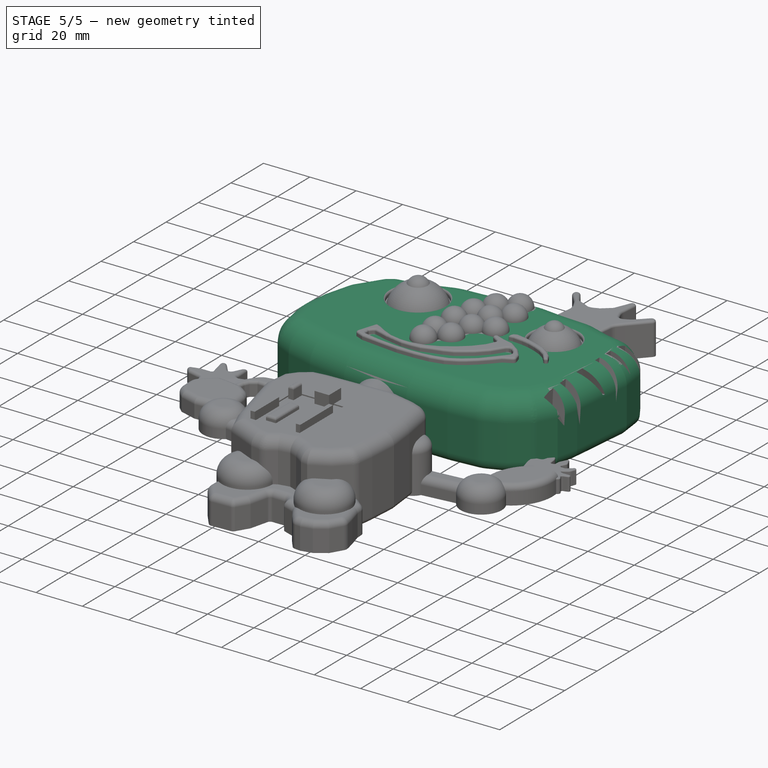
[diagram: stage 5 of 5 — iso view after this stage's code; geometry added in this stage tinted green]
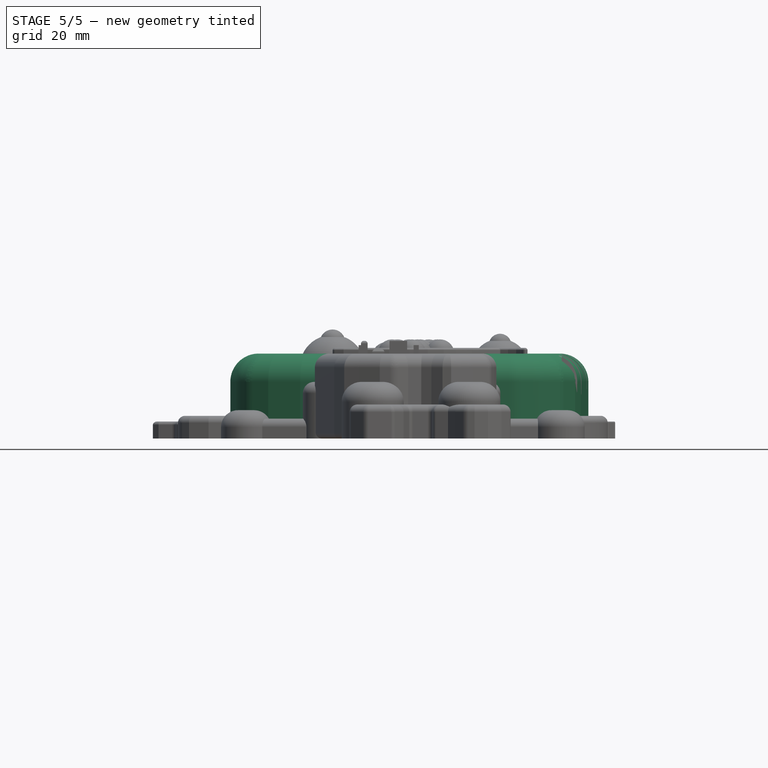
[diagram: stage 5 of 5 — front view after this stage's code; geometry added in this stage tinted green]
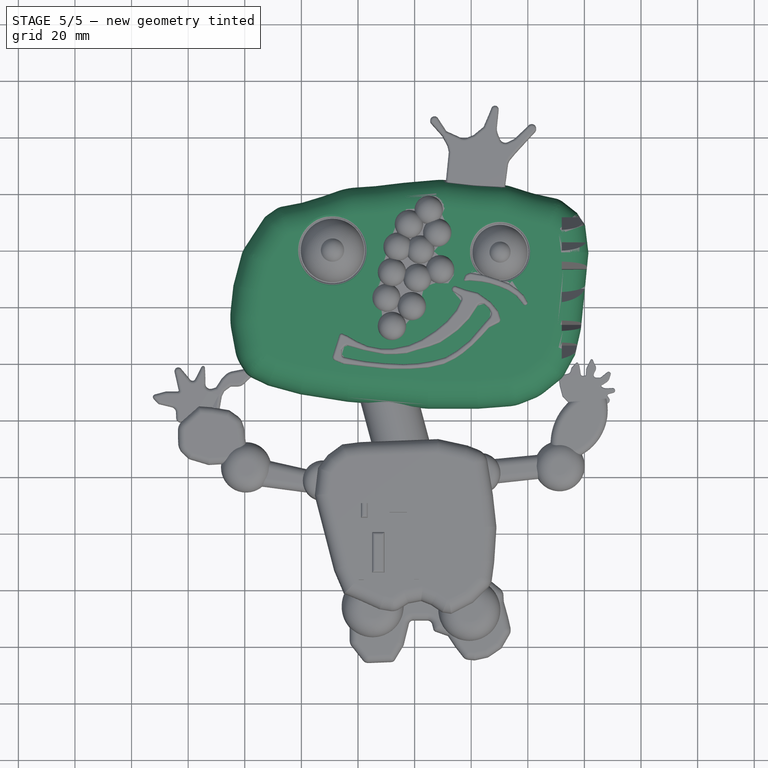
[diagram: stage 5 of 5 — top view after this stage's code; geometry added in this stage tinted green]
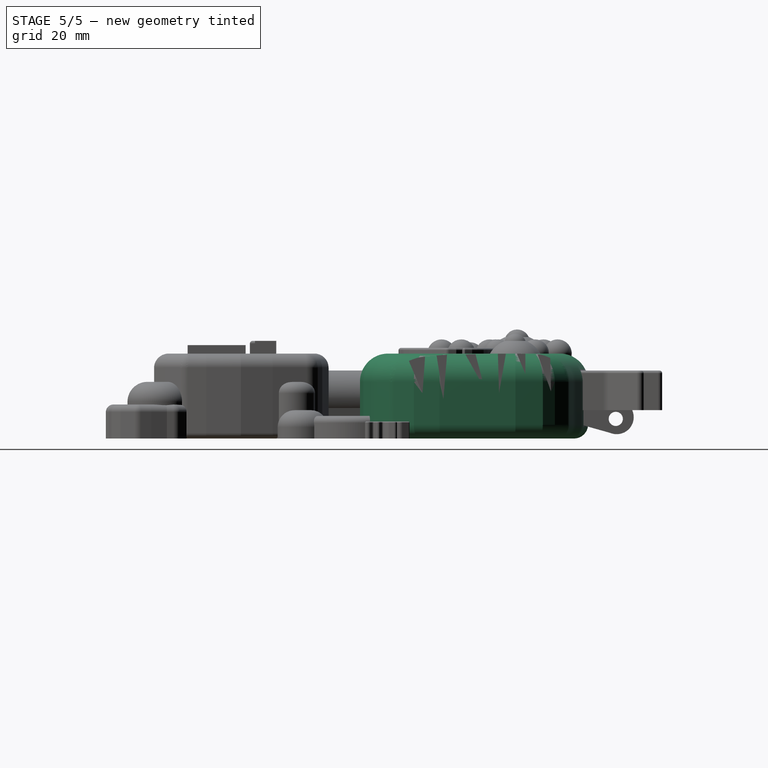
[diagram: stage 5 of 5 — right view after this stage's code; geometry added in this stage tinted green]
FEATURE [Image::ImagePlane] ImagePlane
  XSize = 198
  YSize = 254
FEATURE [Sketcher::SketchObject] Sketch
  sketch-geometry (45):
    g0: LineSegment StartX=-52.0754 StartY=72.2746 StartZ=0 EndX=-49.0563 EndY=74.3788 EndZ=0
    g1: LineSegment StartX=-46.8478 StartY=75.3117 StartZ=0 EndX=-39.6997 EndY=76.6911 EndZ=0
    g2: LineSegment StartX=-39.6997 StartY=76.6911 StartZ=0 EndX=-32.5205 EndY=78.8889 EndZ=0
    g3: LineSegment StartX=-32.5205 StartY=78.8889 StartZ=0 EndX=-27.108 EndY=80.788 EndZ=0
    g4: LineSegment StartX=-21.0625 StartY=82.0379 StartZ=0 EndX=-13.7667 EndY=82.5517 EndZ=0
    g5: LineSegment StartX=-13.7667 StartY=82.5517 StartZ=0 EndX=-3.95026 EndY=83.7238 EndZ=0
    g6: LineSegment StartX=-3.95026 StartY=83.7238 StartZ=0 EndX=7.23959 EndY=84.6969 EndZ=0
    g7: LineSegment StartX=11.8127 StartY=84.639 StartZ=0 EndX=19.4558 EndY=83.7792 EndZ=0
    g8: LineSegment StartX=23.0533 StartY=83.4811 StartZ=0 EndX=29.9581 EndY=83.1129 EndZ=0
    g9: LineSegment StartX=34.415 StartY=82.2988 StartZ=0 EndX=39.7855 EndY=80.59 EndZ=0
    g10: LineSegment StartX=44.0852 StartY=79.4383 StartZ=0 EndX=49.7649 EndY=78.1959 EndZ=0
    g11: LineSegment StartX=52.5096 StartY=76.9015 StartZ=0 EndX=57.4392 EndY=73.0283 EndZ=0
    g12: LineSegment StartX=57.4392 StartY=73.0283 StartZ=0 EndX=60.2229 EndY=68.7794 EndZ=0
    g13: LineSegment StartX=60.2229 StartY=68.7794 StartZ=0 EndX=61.395 EndY=59.1095 EndZ=0
    g14: LineSegment StartX=61.395 StartY=59.1095 StartZ=0 EndX=58.7578 EndY=32.2974 EndZ=0
    g15: LineSegment StartX=58.7578 StartY=32.2974 StartZ=0 EndX=56.7066 EndY=23.2135 EndZ=0
    g16: LineSegment StartX=56.7066 StartY=23.2135 StartZ=0 EndX=52.9123 EndY=16.2573 EndZ=0
    g17: LineSegment StartX=51.3325 StartY=14.3688 StartZ=0 EndX=45.9807 EndY=10.0683 EndZ=0
    g18: LineSegment StartX=41.8712 StartY=7.67572 StartZ=0 EndX=37.4938 EndY=5.93986 EndZ=0
    g19: LineSegment StartX=33.5866 StartY=5.035 StartZ=0 EndX=22.4223 EndY=4.16667 EndZ=0
    g20: LineSegment StartX=22.4223 StartY=4.16667 StartZ=0 EndX=4.69407 EndY=4.16667 EndZ=0
    g21: LineSegment StartX=4.69407 StartY=4.16667 StartZ=0 EndX=-23.8762 EndY=6.65741 EndZ=0
    g22: LineSegment StartX=-23.8762 StartY=6.65741 StartZ=0 EndX=-40.4323 EndY=9.29466 EndZ=0
    g23: LineSegment StartX=-40.4323 StartY=9.29466 StartZ=0 EndX=-51.7139 EndY=12.3715 EndZ=0
    g24: LineSegment StartX=-51.7139 StartY=12.3715 StartZ=0 EndX=-57.2436 EndY=15.0258 EndZ=0
    g25: LineSegment StartX=-60.1064 StartY=17.5701 StartZ=0 EndX=-61.3727 EndY=19.567 EndZ=0
    g26: LineSegment StartX=-63.3498 StartY=24.6055 StartZ=0 EndX=-64.706 EndY=31.9447 EndZ=0
    g27: LineSegment StartX=-64.9592 StartY=38.8409 StartZ=0 EndX=-64.021 EndY=47.3883 EndZ=0
    g28: LineSegment StartX=-64.021 StartY=47.3883 StartZ=0 EndX=-61.132 EndY=58.2878 EndZ=0
    g29: LineSegment StartX=-60.0862 StartY=60.6426 StartZ=0 EndX=-53.4248 EndY=70.8815 EndZ=0
    g30: ArcOfCircle CenterX=-45.7531 CenterY=69.6394 CenterZ=0 NormalX=0 NormalY=0 NormalZ=1 Radius=5.77693 StartAngle=1.76144 EndAngle=2.17949
    g31: ArcOfCircle CenterX=-49.1793 CenterY=68.1193 CenterZ=0 NormalX=0 NormalY=0 NormalZ=1 Radius=5.06498 StartAngle=2.17949 EndAngle=2.56479
    g32: ArcOfCircle CenterX=-53.2595 CenterY=56.2011 CenterZ=0 NormalX=0 NormalY=0 NormalZ=1 Radius=8.1444 StartAngle=2.56479 EndAngle=2.88249
    g33: ArcOfCircle CenterX=-19.4343 CenterY=58.9181 CenterZ=0 NormalX=0 NormalY=0 NormalZ=1 Radius=23.1771 StartAngle=1.6411 EndAngle=1.90825
    g34: ArcOfCircle CenterX=9.23616 CenterY=61.7362 CenterZ=0 NormalX=0 NormalY=0 NormalZ=1 Radius=23.0473 StartAngle=1.45877 EndAngle=1.65753
    g35: ArcOfCircle CenterX=26.3262 CenterY=144.85 CenterZ=0 NormalX=0 NormalY=0 NormalZ=1 Radius=61.4556 StartAngle=4.60036 EndAngle=4.65911
    g36: ArcOfCircle CenterX=29.0085 CenterY=65.3067 CenterZ=0 NormalX=0 NormalY=0 NormalZ=1 Radius=17.8315 StartAngle=1.26274 EndAngle=1.51751
    g37: ArcOfCircle CenterX=54.3503 CenterY=126.365 CenterZ=0 NormalX=0 NormalY=0 NormalZ=1 Radius=48.0361 StartAngle=4.40434 EndAngle=4.49703
    g38: ArcOfCircle CenterX=48.3135 CenterY=71.5611 CenterZ=0 NormalX=0 NormalY=0 NormalZ=1 Radius=6.79169 StartAngle=0.904827 EndAngle=1.35544
    g39: ArcOfCircle CenterX=-41.3867 CenterY=36.2537 CenterZ=0 NormalX=0 NormalY=0 NormalZ=1 Radius=23.714 StartAngle=3.03227 EndAngle=3.32431
    g40: ArcOfCircle CenterX=-49.3471 CenterY=27.193 CenterZ=0 NormalX=0 NormalY=0 NormalZ=1 Radius=14.2398 StartAngle=3.32431 EndAngle=3.70674
    g41: ArcOfCircle CenterX=-54.2352 CenterY=21.2933 CenterZ=0 NormalX=0 NormalY=0 NormalZ=1 Radius=6.95218 StartAngle=3.70674 EndAngle=4.26487
    g42: ArcOfCircle CenterX=32.5457 CenterY=18.4176 CenterZ=0 NormalX=0 NormalY=0 NormalZ=1 Radius=13.423 StartAngle=4.79001 EndAngle=5.08992
    g43: ArcOfCircle CenterX=35.9942 CenterY=22.496 CenterZ=0 NormalX=0 NormalY=0 NormalZ=1 Radius=15.943 StartAngle=5.08992 EndAngle=5.3893
    g44: ArcOfCircle CenterX=47.398 CenterY=19.2651 CenterZ=0 NormalX=0 NormalY=0 NormalZ=1 Radius=6.28124 StartAngle=5.3893 EndAngle=5.78384
  constraints (46):
    c: Coincident(g1,g2)
    c: Coincident(g2,g3)
    c: Coincident(g4,g5)
    c: Coincident(g5,g6)
    c: Coincident(g11,g12)
    c: Coincident(g12,g13)
    c: Coincident(g13,g14)
    c: Coincident(g14,g15)
    c: Coincident(g15,g16)
    c: Coincident(g19,g20)
    c: Horizontal(g20)
    c: Coincident(g20,g21)
    c: Coincident(g21,g22)
    c: Coincident(g22,g23)
    c: Coincident(g23,g24)
    c: Coincident(g27,g28)
    c: Tangent(g0,g30) = 1.5708
    c: Tangent(g1,g30) = 1.5708
    c: Tangent(g0,g31) = 1.5708
    c: Tangent(g29,g31) = 1.5708
    c: Tangent(g28,g32) = 1.5708
    c: Tangent(g29,g32) = 1.5708
    c: Tangent(g3,g33) = 1.5708
    c: Tangent(g4,g33) = 1.5708
    c: Tangent(g6,g34) = 1.5708
    c: Tangent(g7,g34) = 1.5708
    c: Tangent(g7,g35) = -1.5708
    c: Tangent(g8,g35) = -1.5708
    c: Tangent(g8,g36) = 1.5708
    c: Tangent(g9,g36) = 1.5708
    c: Tangent(g9,g37) = -1.5708
    c: Tangent(g10,g37) = -1.5708
    c: Tangent(g10,g38) = 1.5708
    c: Tangent(g11,g38) = 1.5708
    c: Tangent(g27,g39) = 1.5708
    c: Tangent(g26,g39) = 1.5708
    c: Tangent(g26,g40) = 1.5708
    c: Tangent(g25,g40) = 1.5708
    c: Tangent(g25,g41) = 1.5708
    c: Tangent(g24,g41) = 1.5708
    c: Tangent(g19,g42) = 1.5708
    c: Tangent(g18,g42) = 1.5708
    c: Tangent(g18,g43) = 1.5708
    c: Tangent(g17,g43) = 1.5708
    c: Tangent(g17,g44) = 1.5708
    c: Tangent(g16,g44) = 1.5708
FEATURE [PartDesign::Pad] Pad
  Length = 30
  Length2 = 100
  Sketch = -> Sketch
  Type = 0
FEATURE [Part::Fillet] Fillet
  Base = -> Pad
  Edges = 45 edges r=10: [Edge4,Edge7,Edge10,Edge13,Edge16,Edge19,Edge22,Edge25,Edge28,Edge31,Edge34,Edge37,Edge40,Edge43,Edge46,Edge49,Edge52,Edge55,Edge58,Edge61,Edge64,Edge67,Edge70,Edge73,Edge76,Edge79,Edge82,Edge85,Edge88,Edge91,Edge94,Edge97,Edge100,Edge103,Edge106,Edge109,Edge112,Edge115,Edge118,Edge121,Edge124,+4 more]
FEATURE [Part::Fillet] Fillet001  label="Cabeza-base"
  Base = -> Fillet
  Edges = 45 edges r=5: [Edge3,Edge6,Edge11,Edge12,Edge13,Edge14,Edge15,Edge16,Edge17,Edge18,Edge19,Edge20,Edge21,Edge22,Edge23,Edge24,Edge25,Edge26,Edge27,Edge28,Edge29,Edge30,Edge31,Edge32,Edge33,Edge34,Edge35,Edge36,Edge37,Edge38,Edge39,Edge40,Edge41,Edge42,Edge43,Edge44,Edge45,Edge46,Edge47,Edge48,Edge49,Edge50,Edge51,+2 more]
FEATURE [Part::Cut] Cut
  Base = -> Fillet001
  Tool = -> Pad001
FEATURE [Part::Fillet] Fillet002
  Base = -> Cut
  Edges = 7 edges r=1: [Edge71,Edge72,Edge201,Edge204,Edge205,Edge206,Edge207]
FEATURE [Part::Fillet] Fillet003  label="cabeza-cunca-ojos"
  Base = -> Fillet002
  Edges = 1 edges r=1: [Edge41]
FEATURE [Part::MultiFuse] Fusion001  label="cabeza-ojos"
  Shapes = -> [Fillet003,Fusion]
FEATURE [Part::MultiFuse] Fusion002  label="cabeza-ojos-parpado"
  Shapes = -> [Fillet004,Fusion001]
FEATURE [Part::MultiFuse] Fusion003  label="cabeza-ojos-boca"
  Shapes = -> [Fillet005,Fusion002]
FEATURE [Part::Cut] Cut001  label="cabeza-rebaje-nariz001"
  Base = -> Fusion003
  Tool = -> Pad004
FEATURE [Part::MultiFuse] Fusion005  label="Cabeza-sin-llagas"
  Shapes = -> [Fusion004,Cut001]
FEATURE [Part::Cut] Cut002  label="Cabeza-sin-corona"
  Base = -> Fusion005
  Tool = -> Pad005
FEATURE [Part::MultiFuse] Fusion007  label="Cabeza"
  Shapes = -> [Fusion006,Cut002]
FEATURE [Part::MultiFuse] Fusion009  label="Cabeza-Cuello"
  Shapes = -> [Fusion007,Fusion008]
FEATURE [App::DocumentObjectGroup] Grupo  label="2D"
  Group = -> [ImagePlane]
FEATURE [App::DocumentObjectGroup] Grupo001  label="Design"
  Group = -> [Fusion009,Cut003,Fillet009,Fillet010,Pad012,Fillet012,Fillet013,Fillet014,Fillet015,Fillet017,Fusion010]
FEATURE [Part::FeaturePython] Clone  label="Clone of Cabeza-Cuello"  # Draft clone (typed FeaturePython)
  Objects = -> [Fusion009]
  Scale = (1,1,1)
FEATURE [Part::MultiFuse] Fusion011  label="Robocilio"
  Shapes = -> [Clone,Clone005,Clone006,Clone004,Clone007,Clone003,Clone002,Clone001]
FEATURE [App::DocumentObjectGroup] Grupo002  label="Ensamble"
  Group = -> [Fusion011]
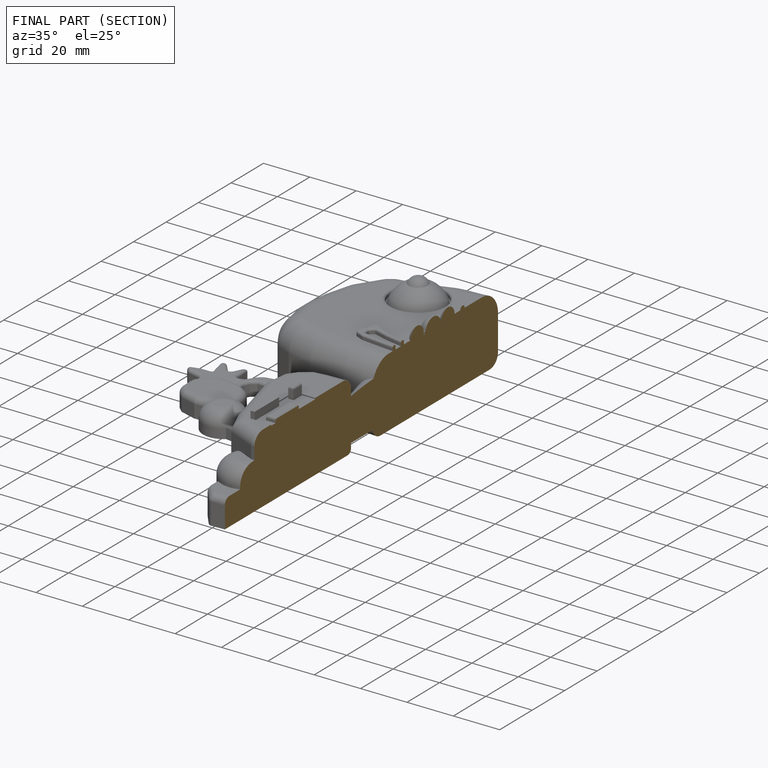
[diagram: finished part — half-section view (interior)]
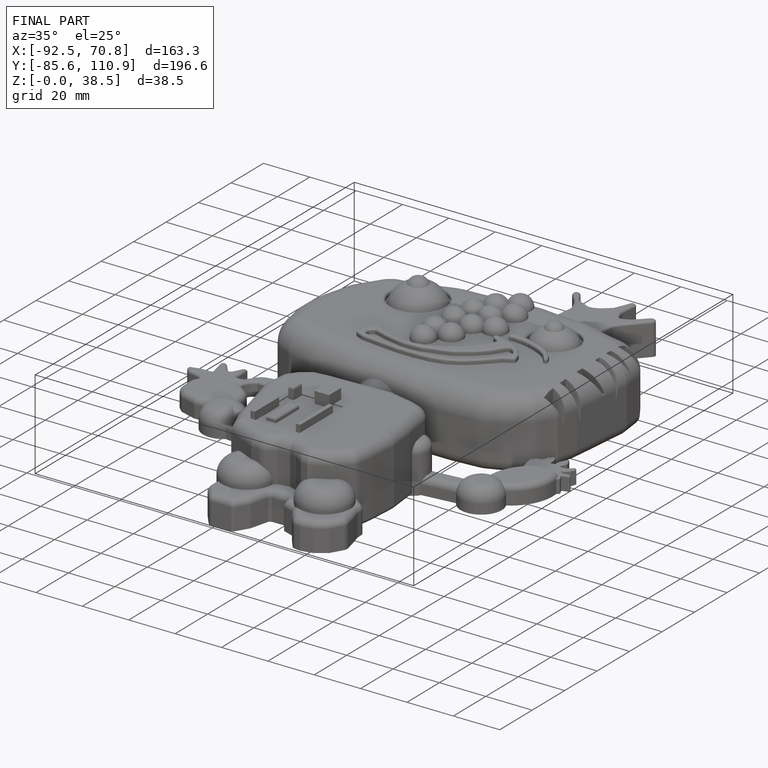
[diagram: finished part — iso view with bounding-box wireframe]
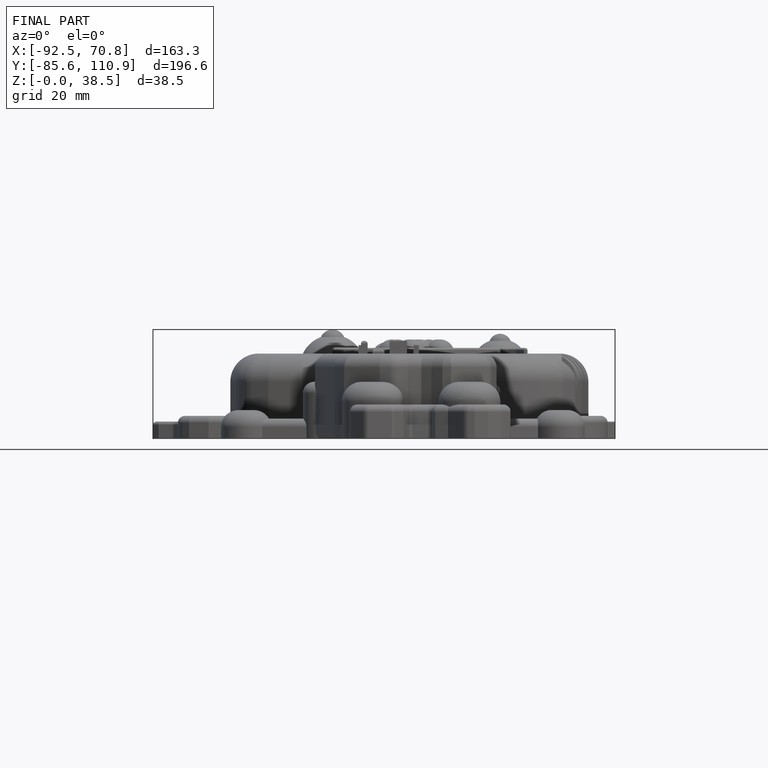
[diagram: finished part — front view with bounding-box wireframe]
